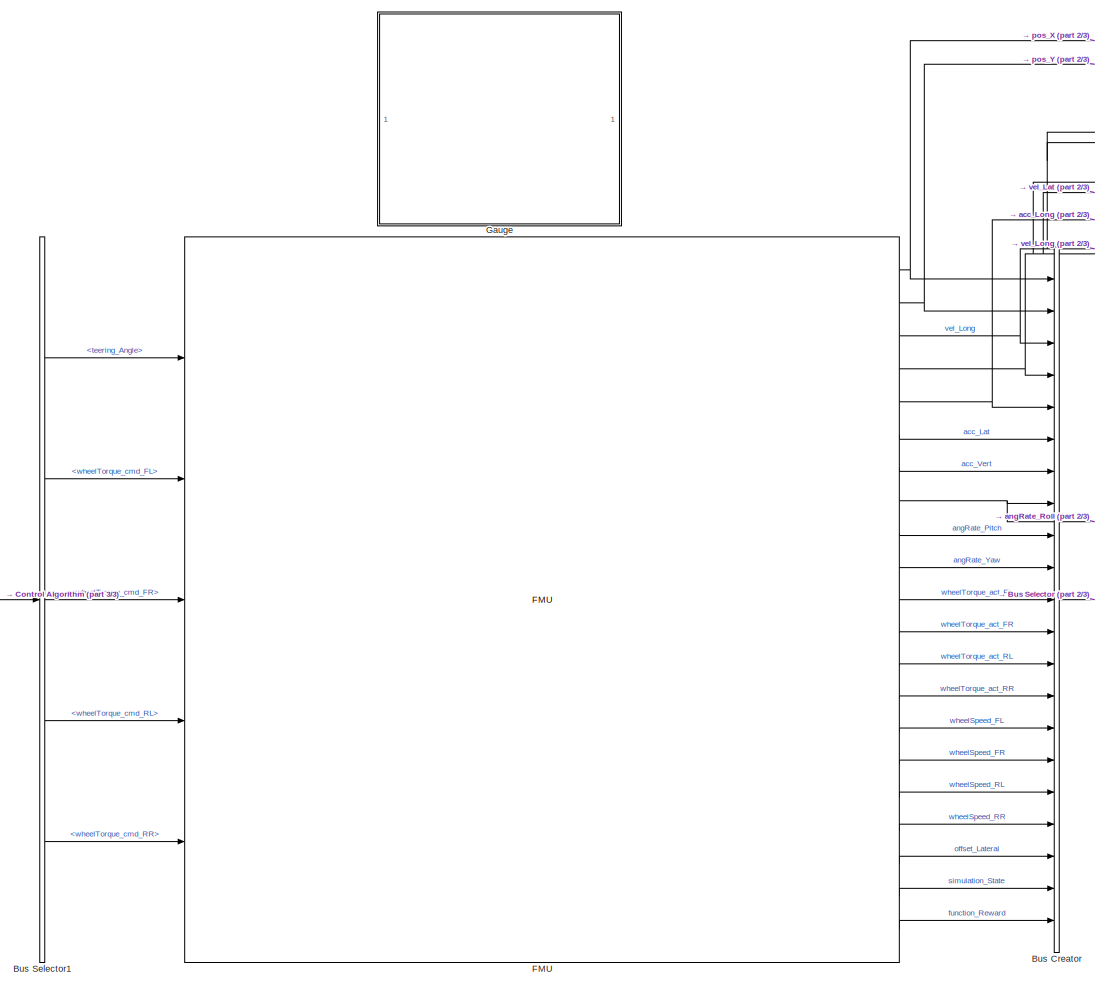
[diagram: root canvas - part 1/3, center side, full height]
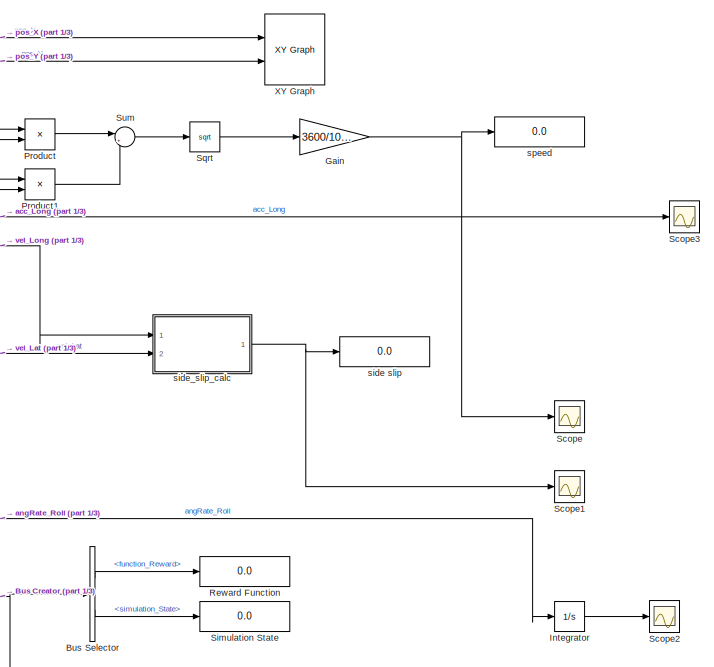
[diagram: root canvas - part 2/3, top right region]
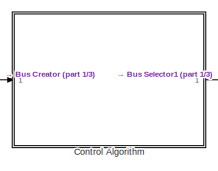
[diagram: root canvas - part 3/3, middle left region]
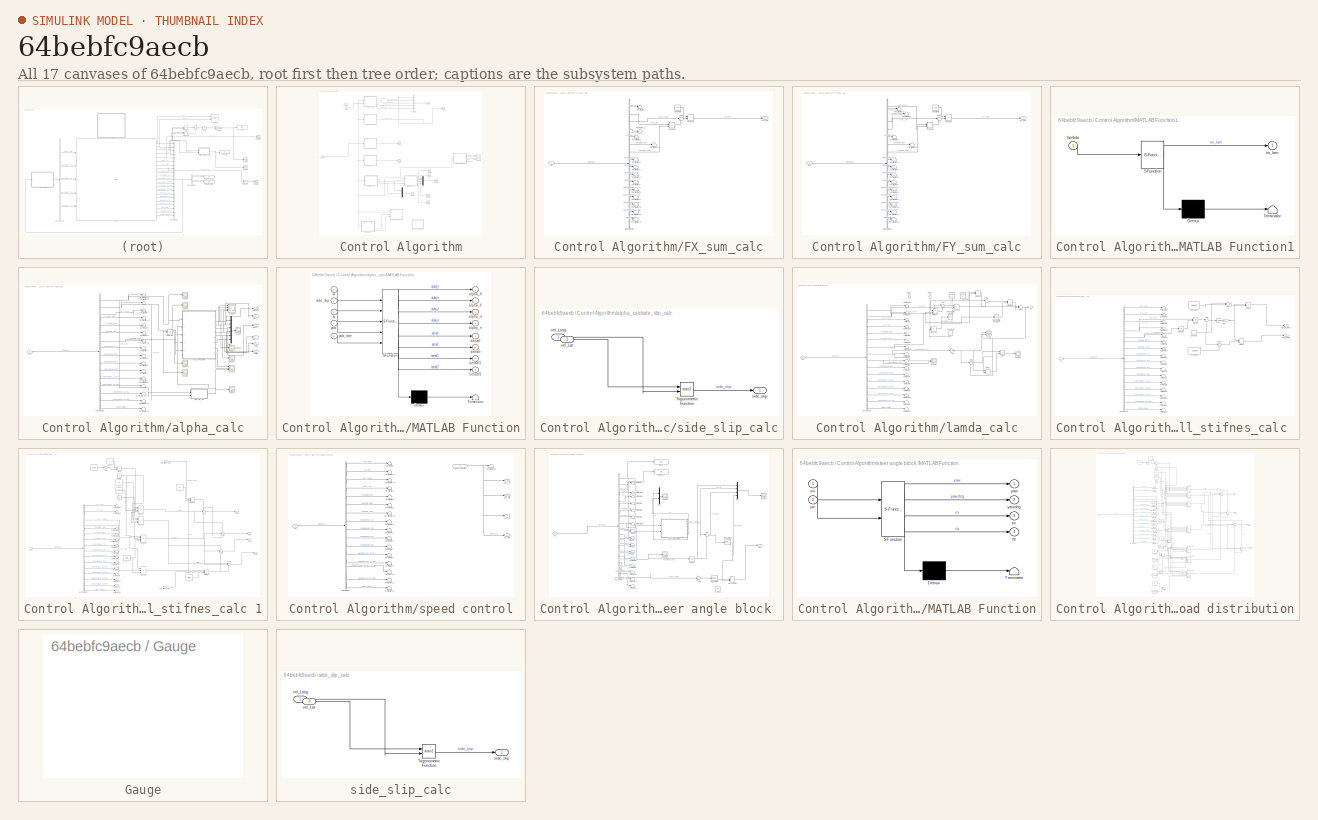
[diagram: thumbnail index - all 17 canvases of the model, root first then tree order]
MODEL slx_64bebfc9aecb
KIND model
CONFIG AbsTol = auto
CONFIG EnableMultiTasking = off
CONFIG FixedStep = 0.01
CONFIG MaxStep = auto
CONFIG MinStep = auto
CONFIG RelTol = 1e-3
CONFIG SampleTimeConstraint = Unconstrained
CONFIG Solver = VariableStepAuto
CONFIG SolverName = VariableStepAuto
CONFIG StartTime = 0.0
CONFIG StopTime = 25
BLOCK [BusCreator] Bus Creator
  DisplayOption = bar
  InheritFromInputs = on
  Inputs = 21
  Ports = [21, 1]
BLOCK [BusSelector] Bus Selector
  OutputAsBus = off
  OutputSignals = function_Reward,simulation_State
  Ports = [1, 2]
BLOCK [BusSelector] Bus Selector1
  OutputAsBus = off
  OutputSignals = teering_Angle,wheelTorque_cmd_FL,wheelTorque_cmd_FR,wheelTorque_cmd_RL,wheelTorque_cmd_RR
  Ports = [1, 5]
BLOCK [SubSystem] Control Algorithm
  Ports = [1, 1]
  RequestExecContextInheritance = off
  Variant = off
BLOCK [Outport] Control Algorithm/Actuation
  IconDisplay = Port number
BLOCK [BusCreator] Control Algorithm/Bus Creator
  DisplayOption = bar
  InheritFromInputs = on
  Inputs = 5
  Ports = [5, 1]
BLOCK [Constant] Control Algorithm/Constant
  Value = 12.5
BLOCK [SubSystem] Control Algorithm/FX_sum_calc
  Ports = [1, 1]
  RequestExecContextInheritance = off
  Variant = off
BLOCK [BusSelector] Control Algorithm/FX_sum_calc/Bus Selector
  OutputAsBus = off
  OutputSignals = vel_Long,vel_Lat,acc_Long,acc_Lat,angRate_Roll,angRate_Pitch,angRate_Yaw,wheelSpeed_FL,wheelSpeed_FR,wheelSpeed_RL,wheelSpeed_RR,wheelTorque_act_FL,wheelTorque_act_FR,wheelTorque_act_RL,wheelTorque_act_RR,offset_Lateral  <repeated x8 — deduplicated; at blocks: Bus Selector>
  Ports = [1, 16]
BLOCK [Constant] Control Algorithm/FX_sum_calc/Constant5
  Value = 1300
BLOCK [Outport] Control Algorithm/FX_sum_calc/FX_sum
  IconDisplay = Port number
BLOCK [Inport] Control Algorithm/FX_sum_calc/In1
  IconDisplay = Port number and signal name
BLOCK [Product] Control Algorithm/FX_sum_calc/Product
  InputSameDT = off
  OutDataTypeStr = Inherit: Inherit via internal rule
  Ports = [2, 1]
  RndMeth = Floor
  SaturateOnIntegerOverflow = off
BLOCK [Product] Control Algorithm/FX_sum_calc/Product1
  InputSameDT = off
  OutDataTypeStr = Inherit: Inherit via internal rule
  Ports = [2, 1]
  RndMeth = Floor
  SaturateOnIntegerOverflow = off
BLOCK [Sum] Control Algorithm/FX_sum_calc/Sum
  IconShape = round
  InputSameDT = off
  Inputs = |+-
  OutDataTypeStr = Inherit: Inherit via internal rule
  Ports = [2, 1]
  SaturateOnIntegerOverflow = off
BLOCK [Terminator] Control Algorithm/FX_sum_calc/Terminator
BLOCK [Terminator] Control Algorithm/FX_sum_calc/Terminator1
BLOCK [Terminator] Control Algorithm/FX_sum_calc/Terminator10
BLOCK [Terminator] Control Algorithm/FX_sum_calc/Terminator11
BLOCK [Terminator] Control Algorithm/FX_sum_calc/Terminator12
BLOCK [Terminator] Control Algorithm/FX_sum_calc/Terminator2
BLOCK [Terminator] Control Algorithm/FX_sum_calc/Terminator3
BLOCK [Terminator] Control Algorithm/FX_sum_calc/Terminator4
BLOCK [Terminator] Control Algorithm/FX_sum_calc/Terminator5
BLOCK [Terminator] Control Algorithm/FX_sum_calc/Terminator6
BLOCK [Terminator] Control Algorithm/FX_sum_calc/Terminator7
BLOCK [Terminator] Control Algorithm/FX_sum_calc/Terminator8
BLOCK [Terminator] Control Algorithm/FX_sum_calc/Terminator9
BLOCK [SubSystem] Control Algorithm/FY_sum_calc
  Ports = [1, 1]
  RequestExecContextInheritance = off
  Variant = off
BLOCK [BusSelector] Control Algorithm/FY_sum_calc/Bus Selector
  OutputAsBus = off
  Ports = [1, 16]
BLOCK [Constant] Control Algorithm/FY_sum_calc/Constant5
  Value = 1300
BLOCK [Outport] Control Algorithm/FY_sum_calc/FY_sum
  IconDisplay = Port number
BLOCK [Inport] Control Algorithm/FY_sum_calc/In1
  IconDisplay = Signal name
BLOCK [Product] Control Algorithm/FY_sum_calc/Product
  InputSameDT = off
  OutDataTypeStr = Inherit: Inherit via internal rule
  Ports = [2, 1]
  RndMeth = Floor
  SaturateOnIntegerOverflow = off
BLOCK [Product] Control Algorithm/FY_sum_calc/Product1
  InputSameDT = off
  OutDataTypeStr = Inherit: Inherit via internal rule
  Ports = [2, 1]
  RndMeth = Floor
  SaturateOnIntegerOverflow = off
BLOCK [Sum] Control Algorithm/FY_sum_calc/Sum
  IconShape = round
  InputSameDT = off
  Inputs = |++
  OutDataTypeStr = Inherit: Inherit via internal rule
  Ports = [2, 1]
  SaturateOnIntegerOverflow = off
BLOCK [Terminator] Control Algorithm/FY_sum_calc/Terminator1
BLOCK [Terminator] Control Algorithm/FY_sum_calc/Terminator10
BLOCK [Terminator] Control Algorithm/FY_sum_calc/Terminator11
BLOCK [Terminator] Control Algorithm/FY_sum_calc/Terminator12
BLOCK [Terminator] Control Algorithm/FY_sum_calc/Terminator13
BLOCK [Terminator] Control Algorithm/FY_sum_calc/Terminator2
BLOCK [Terminator] Control Algorithm/FY_sum_calc/Terminator3
BLOCK [Terminator] Control Algorithm/FY_sum_calc/Terminator4
BLOCK [Terminator] Control Algorithm/FY_sum_calc/Terminator5
BLOCK [Terminator] Control Algorithm/FY_sum_calc/Terminator6
BLOCK [Terminator] Control Algorithm/FY_sum_calc/Terminator7
BLOCK [Terminator] Control Algorithm/FY_sum_calc/Terminator8
BLOCK [Terminator] Control Algorithm/FY_sum_calc/Terminator9
BLOCK [Inport] Control Algorithm/Feedback
  IconDisplay = Port number
BLOCK [SubSystem] Control Algorithm/MATLAB Function1
  ErrorFcn = Stateflow.Translate.translate
  PermitHierarchicalResolution = ExplicitOnly
  Ports = [1, 1]
  RequestExecContextInheritance = off
  SFBlockType = MATLAB Function
  TreatAsAtomicUnit = on
  Variant = off
BLOCK [Demux] Control Algorithm/MATLAB Function1/ Demux 
  Outputs = 1
  Ports = [1, 1]
BLOCK [S-Function] Control Algorithm/MATLAB Function1/ SFunction 
  EnableBusSupport = on
  FunctionName = sf_sfun
  PortCounts = [1 2]
  Ports = [1, 2]
  SFcnIsStateOwnerBlock = off
  SFunctionDeploymentMode = off
  Tag = Stateflow S-Function solution 1
BLOCK [Terminator] Control Algorithm/MATLAB Function1/ Terminator 
BLOCK [Inport] Control Algorithm/MATLAB Function1/lambda
  IconDisplay = Port number
BLOCK [Outport] Control Algorithm/MATLAB Function1/mi_lam
  IconDisplay = Port number
BLOCK [Mux] Control Algorithm/Mux
  DisplayOption = bar
  Ports = [4, 1]
BLOCK [Mux] Control Algorithm/Mux1
  DisplayOption = bar
  Inputs = 2
  Ports = [2, 1]
BLOCK [Scope] Control Algorithm/Scope
  NumInputPorts = 1
  Ports = [1]
  ScopeSpecificationString = Simulink.scopes.TimeScopeBlockCfg('CurrentConfiguration', extmgr.ConfigurationSet(extmgr.Configuration('Core','General UI',true),extmgr.Configuration('Core','Source UI',true),extmgr.Configuration('Sources','WiredSimulink',true),extmgr.Configuration('Visuals','Time Domain',true,'SerializedDisplays',{struct('MinYLimReal','-3736.70903','MaxYLimReal','1861.60857','YLabelReal','','MinYLimMag','  0.0000...<+1382ch>
BLOCK [Scope] Control Algorithm/Scope1
  NumInputPorts = 1
  Ports = [1]
  ScopeSpecificationString = Simulink.scopes.TimeScopeBlockCfg('CurrentConfiguration', extmgr.ConfigurationSet(extmgr.Configuration('Core','General UI',true),extmgr.Configuration('Core','Source UI',true),extmgr.Configuration('Sources','WiredSimulink',true,'DataLoggingVariableName','ScopeData1'),extmgr.Configuration('Visuals','Time Domain',true,'SerializedDisplays',{struct('MinYLimReal','-31934.51338','MaxYLimReal','29941.2167...<+1474ch>
BLOCK [Scope] Control Algorithm/Scope2
  NumInputPorts = 1
  Ports = [1]
  ScopeSpecificationString = Simulink.scopes.TimeScopeBlockCfg('CurrentConfiguration', extmgr.ConfigurationSet(extmgr.Configuration('Core','General UI',true),extmgr.Configuration('Core','Source UI',true),extmgr.Configuration('Sources','WiredSimulink',true,'DataLoggingVariableName','ScopeData4'),extmgr.Configuration('Visuals','Time Domain',true,'SerializedDisplays',{struct('MinYLimReal','-0.56487','MaxYLimReal','5.08382','YLab...<+1425ch>
BLOCK [Scope] Control Algorithm/Scope3
  NumInputPorts = 1
  Ports = [1]
  ScopeSpecificationString = Simulink.scopes.TimeScopeBlockCfg('CurrentConfiguration', extmgr.ConfigurationSet(extmgr.Configuration('Core','General UI',true),extmgr.Configuration('Core','Source UI',true),extmgr.Configuration('Sources','WiredSimulink',true,'DataLoggingVariableName','ScopeData5'),extmgr.Configuration('Visuals','Time Domain',true,'SerializedDisplays',{struct('MinYLimReal','-81057023.23958','MaxYLimReal','5757985...<+1551ch>
BLOCK [Scope] Control Algorithm/Scope4
  NumInputPorts = 1
  Ports = [1]
  ScopeSpecificationString = Simulink.scopes.TimeScopeBlockCfg('CurrentConfiguration', extmgr.ConfigurationSet(extmgr.Configuration('Core','General UI',true),extmgr.Configuration('Core','Source UI',true),extmgr.Configuration('Sources','WiredSimulink',true,'DataLoggingVariableName','ScopeData6'),extmgr.Configuration('Visuals','Time Domain',true,'SerializedDisplays',{struct('MinYLimReal','-6687000496.41714','MaxYLimReal','69885...<+1522ch>
BLOCK [Scope] Control Algorithm/Scope5
  NumInputPorts = 1
  Ports = [1]
  ScopeSpecificationString = Simulink.scopes.TimeScopeBlockCfg('CurrentConfiguration', extmgr.ConfigurationSet(extmgr.Configuration('Core','General UI',true),extmgr.Configuration('Core','Source UI',true),extmgr.Configuration('Sources','WiredSimulink',true,'DataLoggingVariableName','ScopeData7'),extmgr.Configuration('Visuals','Time Domain',true,'SerializedDisplays',{struct('MinYLimReal','-153750814.21969','MaxYLimReal','178977...<+1488ch>
BLOCK [Scope] Control Algorithm/Scope6
  NumInputPorts = 1
  Ports = [1]
  ScopeSpecificationString = Simulink.scopes.TimeScopeBlockCfg('CurrentConfiguration', extmgr.ConfigurationSet(extmgr.Configuration('Core','General UI',true),extmgr.Configuration('Core','Source UI',true),extmgr.Configuration('Sources','WiredSimulink',true,'DataLoggingVariableName','ScopeData8'),extmgr.Configuration('Visuals','Time Domain',true,'SerializedDisplays',{struct('MinYLimReal','-6687000167.53782','MaxYLimReal','69885...<+1497ch>
BLOCK [Scope] Control Algorithm/Scope7
  NumInputPorts = 1
  Ports = [1]
  ScopeSpecificationString = Simulink.scopes.TimeScopeBlockCfg('CurrentConfiguration', extmgr.ConfigurationSet(extmgr.Configuration('Core','General UI',true),extmgr.Configuration('Core','Source UI',true),extmgr.Configuration('Sources','WiredSimulink',true,'DataLoggingVariableName','ScopeData9'),extmgr.Configuration('Visuals','Time Domain',true,'SerializedDisplays',{struct('MinYLimReal','-153750814.21969','MaxYLimReal','178977...<+1560ch>
BLOCK [Scope] Control Algorithm/Scope8
  NumInputPorts = 1
  Ports = [1]
  ScopeSpecificationString = Simulink.scopes.TimeScopeBlockCfg('CurrentConfiguration', extmgr.ConfigurationSet(extmgr.Configuration('Core','General UI',true),extmgr.Configuration('Core','Source UI',true),extmgr.Configuration('Sources','WiredSimulink',true,'DataLoggingVariableName','ScopeData10'),extmgr.Configuration('Visuals','Time Domain',true,'SerializedDisplays',{struct('MinYLimReal','-153750814.21969','MaxYLimReal','17897...<+1511ch>
BLOCK [Scope] Control Algorithm/Scope9
  NumInputPorts = 4
  Ports = [4]
  ScopeSpecificationString = Simulink.scopes.TimeScopeBlockCfg('CurrentConfiguration', extmgr.ConfigurationSet(extmgr.Configuration('Core','General UI',true),extmgr.Configuration('Core','Source UI',true),extmgr.Configuration('Sources','WiredSimulink',true,'DataLoggingVariableName','ScopeData16'),extmgr.Configuration('Visuals','Time Domain',true,'SerializedDisplays',{struct('MinYLimReal','2996.53454','MaxYLimReal','3339.26901'...<+1601ch>
BLOCK [Step] Control Algorithm/Step
  After = 1200
  Before = 12.5
  SampleTime = 0
  Time = 5
BLOCK [SubSystem] Control Algorithm/alpha_calc
  Ports = [1, 6]
  RequestExecContextInheritance = off
  Variant = off
BLOCK [BusSelector] Control Algorithm/alpha_calc/Bus Selector
  OutputAsBus = off
  Ports = [1, 16]
BLOCK [Inport] Control Algorithm/alpha_calc/In1
  IconDisplay = Port number and signal name
BLOCK [Integrator] Control Algorithm/alpha_calc/Integrator
  Ports = [1, 1]
BLOCK [SubSystem] Control Algorithm/alpha_calc/MATLAB Function
  ErrorFcn = Stateflow.Translate.translate
  PermitHierarchicalResolution = ExplicitOnly
  Ports = [5, 8]
  RequestExecContextInheritance = off
  SFBlockType = MATLAB Function
  TreatAsAtomicUnit = on
  Variant = off
BLOCK [Demux] Control Algorithm/alpha_calc/MATLAB Function/ Demux 
  Outputs = 1
  Ports = [1, 1]
BLOCK [S-Function] Control Algorithm/alpha_calc/MATLAB Function/ SFunction 
  EnableBusSupport = on
  FunctionName = sf_sfun
  PortCounts = [5 9]
  Ports = [5, 9]
  SFcnIsStateOwnerBlock = off
  SFunctionDeploymentMode = off
  Tag = Stateflow S-Function solution 3
BLOCK [Terminator] Control Algorithm/alpha_calc/MATLAB Function/ Terminator 
BLOCK [Outport] Control Algorithm/alpha_calc/MATLAB Function/alpha_fl
  IconDisplay = Port number
BLOCK [Outport] Control Algorithm/alpha_calc/MATLAB Function/alpha_fr
  IconDisplay = Port number
  Port = 2
BLOCK [Outport] Control Algorithm/alpha_calc/MATLAB Function/alpha_rl
  IconDisplay = Port number
  Port = 3
BLOCK [Outport] Control Algorithm/alpha_calc/MATLAB Function/alpha_rr
  IconDisplay = Port number
  Port = 4
BLOCK [Outport] Control Algorithm/alpha_calc/MATLAB Function/betadf1
  IconDisplay = Port number
  Port = 7
BLOCK [Outport] Control Algorithm/alpha_calc/MATLAB Function/betadf2
  IconDisplay = Port number
  Port = 8
BLOCK [Outport] Control Algorithm/alpha_calc/MATLAB Function/deltafl
  IconDisplay = Port number
  Port = 5
BLOCK [Outport] Control Algorithm/alpha_calc/MATLAB Function/deltafr
  IconDisplay = Port number
  Port = 6
BLOCK [Inport] Control Algorithm/alpha_calc/MATLAB Function/side_slip
  IconDisplay = Port number
  Port = 2
BLOCK [Inport] Control Algorithm/alpha_calc/MATLAB Function/vx
  IconDisplay = Port number
BLOCK [Inport] Control Algorithm/alpha_calc/MATLAB Function/vy
  IconDisplay = Port number
  Port = 3
BLOCK [Inport] Control Algorithm/alpha_calc/MATLAB Function/yaw
  IconDisplay = Port number
  Port = 4
BLOCK [Inport] Control Algorithm/alpha_calc/MATLAB Function/yaw_rate
  IconDisplay = Port number
  Port = 5
BLOCK [Mux] Control Algorithm/alpha_calc/Mux
  DisplayOption = bar
  Inputs = 6
  Ports = [6, 1]
BLOCK [Scope] Control Algorithm/alpha_calc/Scope
  NumInputPorts = 1
  Ports = [1]
  ScopeSpecificationString = Simulink.scopes.TimeScopeBlockCfg('CurrentConfiguration', extmgr.ConfigurationSet(extmgr.Configuration('Core','General UI',true),extmgr.Configuration('Core','Source UI',true),extmgr.Configuration('Sources','WiredSimulink',true,'DataLoggingVariableName','ScopeData1'),extmgr.Configuration('Visuals','Time Domain',true,'SerializedDisplays',{struct('MinYLimReal','-0.28358','MaxYLimReal','0.90857','YLab...<+1614ch>
BLOCK [Scope] Control Algorithm/alpha_calc/Scope1
  NumInputPorts = 1
  Ports = [1]
  ScopeSpecificationString = Simulink.scopes.TimeScopeBlockCfg('CurrentConfiguration', extmgr.ConfigurationSet(extmgr.Configuration('Core','General UI',true),extmgr.Configuration('Core','Source UI',true),extmgr.Configuration('Sources','WiredSimulink',true,'DataLoggingVariableName','ScopeData2'),extmgr.Configuration('Visuals','Time Domain',true,'SerializedDisplays',{struct('MinYLimReal','-0.07769','MaxYLimReal','0.69916','YLab...<+1419ch>
BLOCK [Scope] Control Algorithm/alpha_calc/Scope11
  NumInputPorts = 4
  Ports = [4]
  ScopeSpecificationString = Simulink.scopes.TimeScopeBlockCfg('CurrentConfiguration', extmgr.ConfigurationSet(extmgr.Configuration('Core','General UI',true),extmgr.Configuration('Core','Source UI',true),extmgr.Configuration('Sources','WiredSimulink',true,'DataLoggingVariableName','ScopeData4'),extmgr.Configuration('Visuals','Time Domain',true,'SerializedDisplays',{struct('MinYLimReal','-0.96339','MaxYLimReal','0.4521','YLabe...<+1533ch>
BLOCK [Scope] Control Algorithm/alpha_calc/Scope2
  NumInputPorts = 1
  Ports = [1]
  ScopeSpecificationString = Simulink.scopes.TimeScopeBlockCfg('CurrentConfiguration', extmgr.ConfigurationSet(extmgr.Configuration('Core','General UI',true),extmgr.Configuration('Core','Source UI',true),extmgr.Configuration('Sources','WiredSimulink',true,'DataLoggingVariableName','ScopeData4'),extmgr.Configuration('Visuals','Time Domain',true,'SerializedDisplays',{struct('MinYLimReal','-0.3927','MaxYLimReal','3.53429','YLabe...<+1424ch>
BLOCK [Scope] Control Algorithm/alpha_calc/Scope3
  NumInputPorts = 1
  Ports = [1]
  ScopeSpecificationString = Simulink.scopes.TimeScopeBlockCfg('CurrentConfiguration', extmgr.ConfigurationSet(extmgr.Configuration('Core','General UI',true),extmgr.Configuration('Core','Source UI',true),extmgr.Configuration('Sources','WiredSimulink',true,'DataLoggingVariableName','ScopeData5'),extmgr.Configuration('Visuals','Time Domain',true,'SerializedDisplays',{struct('MinYLimReal','16.42337','MaxYLimReal','19.03402','YLa...<+1420ch>
BLOCK [Scope] Control Algorithm/alpha_calc/Scope4
  NumInputPorts = 1
  Ports = [1]
  ScopeSpecificationString = Simulink.scopes.TimeScopeBlockCfg('CurrentConfiguration', extmgr.ConfigurationSet(extmgr.Configuration('Core','General UI',true),extmgr.Configuration('Core','Source UI',true),extmgr.Configuration('Sources','WiredSimulink',true,'DataLoggingVariableName','ScopeData6'),extmgr.Configuration('Visuals','Time Domain',true,'SerializedDisplays',{struct('MinYLimReal','-1.49684','MaxYLimReal','0.71419','YLab...<+1412ch>
BLOCK [Scope] Control Algorithm/alpha_calc/Scope5
  NumInputPorts = 1
  Ports = [1]
  ScopeSpecificationString = Simulink.scopes.TimeScopeBlockCfg('CurrentConfiguration', extmgr.ConfigurationSet(extmgr.Configuration('Core','General UI',true),extmgr.Configuration('Core','Source UI',true),extmgr.Configuration('Sources','WiredSimulink',true,'DataLoggingVariableName','ScopeData7'),extmgr.Configuration('Visuals','Time Domain',true,'SerializedDisplays',{struct('MinYLimReal','-0.00000015','MaxYLimReal','0.00000002'...<+1464ch>
BLOCK [Scope] Control Algorithm/alpha_calc/Scope6
  NumInputPorts = 1
  Ports = [1]
  ScopeSpecificationString = Simulink.scopes.TimeScopeBlockCfg('CurrentConfiguration', extmgr.ConfigurationSet(extmgr.Configuration('Core','General UI',true),extmgr.Configuration('Core','Source UI',true),extmgr.Configuration('Sources','WiredSimulink',true,'DataLoggingVariableName','ScopeData8'),extmgr.Configuration('Visuals','Time Domain',true,'SerializedDisplays',{struct('MinYLimReal','-0.00000012','MaxYLimReal','0.00000002'...<+1455ch>
BLOCK [Scope] Control Algorithm/alpha_calc/Scope8
  NumInputPorts = 3
  Ports = [3]
  ScopeSpecificationString = Simulink.scopes.TimeScopeBlockCfg('CurrentConfiguration', extmgr.ConfigurationSet(extmgr.Configuration('Core','General UI',true),extmgr.Configuration('Core','Source UI',true),extmgr.Configuration('Sources','WiredSimulink',true,'DataLoggingVariableName','ScopeData1'),extmgr.Configuration('Visuals','Time Domain',true,'SerializedDisplays',{struct('MinYLimReal','-0.08345','MaxYLimReal','0.0384','YLabe...<+1519ch>
BLOCK [Scope] Control Algorithm/alpha_calc/Scope9
  NumInputPorts = 1
  Ports = [1]
  ScopeSpecificationString = Simulink.scopes.TimeScopeBlockCfg('CurrentConfiguration', extmgr.ConfigurationSet(extmgr.Configuration('Core','General UI',true),extmgr.Configuration('Core','Source UI',true),extmgr.Configuration('Sources','WiredSimulink',true,'DataLoggingVariableName','ScopeData2'),extmgr.Configuration('Visuals','Time Domain',true,'SerializedDisplays',{struct('MinYLimReal','-0.08144','MaxYLimReal','0.03818','YLab...<+1475ch>
BLOCK [Terminator] Control Algorithm/alpha_calc/Terminator1
BLOCK [Terminator] Control Algorithm/alpha_calc/Terminator10
BLOCK [Terminator] Control Algorithm/alpha_calc/Terminator11
BLOCK [Terminator] Control Algorithm/alpha_calc/Terminator12
BLOCK [Terminator] Control Algorithm/alpha_calc/Terminator13
BLOCK [Terminator] Control Algorithm/alpha_calc/Terminator14
BLOCK [Terminator] Control Algorithm/alpha_calc/Terminator15
BLOCK [Terminator] Control Algorithm/alpha_calc/Terminator16
BLOCK [Terminator] Control Algorithm/alpha_calc/Terminator2
BLOCK [Terminator] Control Algorithm/alpha_calc/Terminator3
BLOCK [Terminator] Control Algorithm/alpha_calc/Terminator4
BLOCK [Terminator] Control Algorithm/alpha_calc/Terminator5
BLOCK [Terminator] Control Algorithm/alpha_calc/Terminator6
BLOCK [Terminator] Control Algorithm/alpha_calc/Terminator7
BLOCK [Terminator] Control Algorithm/alpha_calc/Terminator8
BLOCK [Terminator] Control Algorithm/alpha_calc/Terminator9
BLOCK [Outport] Control Algorithm/alpha_calc/alpha_fl
  IconDisplay = Port number
BLOCK [Outport] Control Algorithm/alpha_calc/alpha_fr
  IconDisplay = Port number
  Port = 2
BLOCK [Outport] Control Algorithm/alpha_calc/alpha_rl
  IconDisplay = Port number
  Port = 3
BLOCK [Outport] Control Algorithm/alpha_calc/alpha_rr
  IconDisplay = Port number
  Port = 4
BLOCK [Outport] Control Algorithm/alpha_calc/deltafl
  IconDisplay = Port number
  Port = 5
BLOCK [Outport] Control Algorithm/alpha_calc/deltafr
  IconDisplay = Port number
  Port = 6
BLOCK [SubSystem] Control Algorithm/alpha_calc/side_slip_calc
  Ports = [2, 1]
  RequestExecContextInheritance = off
  Variant = off
BLOCK [Trigonometry] Control Algorithm/alpha_calc/side_slip_calc/Trigonometric Function
  Operator = atan2
  Ports = [2, 1]
BLOCK [Outport] Control Algorithm/alpha_calc/side_slip_calc/side_slip
  IconDisplay = Port number
BLOCK [Inport] Control Algorithm/alpha_calc/side_slip_calc/vel_Lat
  IconDisplay = Port number
  Port = 2
BLOCK [Inport] Control Algorithm/alpha_calc/side_slip_calc/vel_Long
  IconDisplay = Port number
BLOCK [SubSystem] Control Algorithm/lamda_calc
  Ports = [3, 1]
  RequestExecContextInheritance = off
  Variant = off
BLOCK [BusSelector] Control Algorithm/lamda_calc/Bus Selector
  OutputAsBus = off
  Ports = [1, 16]
BLOCK [Constant] Control Algorithm/lamda_calc/Constant
  Value = 1.7/2
BLOCK [Constant] Control Algorithm/lamda_calc/Constant1
  Value = 1.4
BLOCK [Constant] Control Algorithm/lamda_calc/Constant2
  Value = -1
BLOCK [Product] Control Algorithm/lamda_calc/Divide
  InputSameDT = off
  Inputs = */
  OutDataTypeStr = Inherit: Inherit via internal rule
  Ports = [2, 1]
  RndMeth = Floor
  SaturateOnIntegerOverflow = off
BLOCK [Gain] Control Algorithm/lamda_calc/Gain
  Gain = 0.254
  OutDataTypeStr = Inherit: Inherit via internal rule
  ParamDataTypeStr = Inherit: Inherit via internal rule
  SaturateOnIntegerOverflow = off
BLOCK [Inport] Control Algorithm/lamda_calc/In1
  IconDisplay = Port number and signal name
BLOCK [MinMax] Control Algorithm/lamda_calc/MinMax
  Function = max
  InputSameDT = off
  Inputs = 2
  Ports = [2, 1]
  SaturateOnIntegerOverflow = off
BLOCK [Product] Control Algorithm/lamda_calc/Product
  InputSameDT = off
  OutDataTypeStr = Inherit: Inherit via internal rule
  Ports = [2, 1]
  RndMeth = Floor
  SaturateOnIntegerOverflow = off
BLOCK [Product] Control Algorithm/lamda_calc/Product1
  InputSameDT = off
  OutDataTypeStr = Inherit: Inherit via internal rule
  Ports = [2, 1]
  RndMeth = Floor
  SaturateOnIntegerOverflow = off
BLOCK [Product] Control Algorithm/lamda_calc/Product2
  InputSameDT = off
  OutDataTypeStr = Inherit: Inherit via internal rule
  Ports = [2, 1]
  RndMeth = Floor
  SaturateOnIntegerOverflow = off
BLOCK [Product] Control Algorithm/lamda_calc/Product3
  InputSameDT = off
  OutDataTypeStr = Inherit: Inherit via internal rule
  Ports = [2, 1]
  RndMeth = Floor
  SaturateOnIntegerOverflow = off
BLOCK [Product] Control Algorithm/lamda_calc/Product4
  InputSameDT = off
  OutDataTypeStr = Inherit: Inherit via internal rule
  Ports = [2, 1]
  RndMeth = Floor
  SaturateOnIntegerOverflow = off
BLOCK [Scope] Control Algorithm/lamda_calc/Scope
  NumInputPorts = 2
  Ports = [2]
  ScopeSpecificationString = Simulink.scopes.TimeScopeBlockCfg('CurrentConfiguration', extmgr.ConfigurationSet(extmgr.Configuration('Core','General UI',true),extmgr.Configuration('Core','Source UI',true),extmgr.Configuration('Sources','WiredSimulink',true,'DataLoggingVariableName','ScopeData2'),extmgr.Configuration('Visuals','Time Domain',true,'SerializedDisplays',{struct('MinYLimReal','11.86258','MaxYLimReal','17.58205','YLa...<+1472ch>
BLOCK [Scope] Control Algorithm/lamda_calc/Scope1
  NumInputPorts = 2
  Ports = [2]
  ScopeSpecificationString = Simulink.scopes.TimeScopeBlockCfg('CurrentConfiguration', extmgr.ConfigurationSet(extmgr.Configuration('Core','General UI',true),extmgr.Configuration('Core','Source UI',true),extmgr.Configuration('Sources','WiredSimulink',true,'DataLoggingVariableName','ScopeData1'),extmgr.Configuration('Visuals','Time Domain',true,'SerializedDisplays',{struct('MinYLimReal','48.31224','MaxYLimReal','54.73804','YLa...<+1493ch>
BLOCK [Scope] Control Algorithm/lamda_calc/Scope2
  NumInputPorts = 2
  Ports = [2]
  ScopeSpecificationString = Simulink.scopes.TimeScopeBlockCfg('CurrentConfiguration', extmgr.ConfigurationSet(extmgr.Configuration('Core','General UI',true),extmgr.Configuration('Core','Source UI',true),extmgr.Configuration('Sources','WiredSimulink',true,'DataLoggingVariableName','ScopeData2'),extmgr.Configuration('Visuals','Time Domain',true,'SerializedDisplays',{struct('MinYLimReal','-0.3701','MaxYLimReal','0.7793','YLabel...<+1441ch>
BLOCK [Sum] Control Algorithm/lamda_calc/Sum
  IconShape = round
  InputSameDT = off
  Inputs = |+-
  OutDataTypeStr = Inherit: Inherit via internal rule
  Ports = [2, 1]
  SaturateOnIntegerOverflow = off
BLOCK [Sum] Control Algorithm/lamda_calc/Sum1
  IconShape = round
  InputSameDT = off
  Inputs = |++
  OutDataTypeStr = Inherit: Inherit via internal rule
  Ports = [2, 1]
  SaturateOnIntegerOverflow = off
BLOCK [Sum] Control Algorithm/lamda_calc/Sum2
  IconShape = round
  InputSameDT = off
  Inputs = |++
  OutDataTypeStr = Inherit: Inherit via internal rule
  Ports = [2, 1]
  SaturateOnIntegerOverflow = off
BLOCK [Sum] Control Algorithm/lamda_calc/Sum3
  IconShape = round
  InputSameDT = off
  Inputs = |+-
  OutDataTypeStr = Inherit: Inherit via internal rule
  Ports = [2, 1]
  SaturateOnIntegerOverflow = off
BLOCK [Terminator] Control Algorithm/lamda_calc/Terminator1
BLOCK [Terminator] Control Algorithm/lamda_calc/Terminator10
BLOCK [Terminator] Control Algorithm/lamda_calc/Terminator11
BLOCK [Terminator] Control Algorithm/lamda_calc/Terminator12
BLOCK [Terminator] Control Algorithm/lamda_calc/Terminator13
BLOCK [Terminator] Control Algorithm/lamda_calc/Terminator14
BLOCK [Terminator] Control Algorithm/lamda_calc/Terminator15
BLOCK [Terminator] Control Algorithm/lamda_calc/Terminator16
BLOCK [Terminator] Control Algorithm/lamda_calc/Terminator2
BLOCK [Terminator] Control Algorithm/lamda_calc/Terminator3
BLOCK [Terminator] Control Algorithm/lamda_calc/Terminator4
BLOCK [Terminator] Control Algorithm/lamda_calc/Terminator5
BLOCK [Terminator] Control Algorithm/lamda_calc/Terminator6
BLOCK [Terminator] Control Algorithm/lamda_calc/Terminator7
BLOCK [Terminator] Control Algorithm/lamda_calc/Terminator8
BLOCK [Terminator] Control Algorithm/lamda_calc/Terminator9
BLOCK [Trigonometry] Control Algorithm/lamda_calc/Trigonometric Function
  Operator = cos
  Ports = [1, 1]
BLOCK [Trigonometry] Control Algorithm/lamda_calc/Trigonometric Function1
  Ports = [1, 1]
BLOCK [Inport] Control Algorithm/lamda_calc/delta_fl
  IconDisplay = Port number
  Port = 2
BLOCK [Inport] Control Algorithm/lamda_calc/delta_fr
  IconDisplay = Port number
  Port = 3
BLOCK [Outport] Control Algorithm/lamda_calc/vfl
  IconDisplay = Port number
BLOCK [SubSystem] Control Algorithm/roll_stifnes_calc 
  Ports = [1, 2]
  RequestExecContextInheritance = off
  Variant = off
BLOCK [BusSelector] Control Algorithm/roll_stifnes_calc /Bus Selector
  OutputAsBus = off
  Ports = [1, 16]
BLOCK [Constant] Control Algorithm/roll_stifnes_calc /Constant
BLOCK [Constant] Control Algorithm/roll_stifnes_calc /Constant1
  Value = 1.7/1.684
BLOCK [Constant] Control Algorithm/roll_stifnes_calc /Constant2
  Value = 1.684/1.7
BLOCK [Product] Control Algorithm/roll_stifnes_calc /Divide
  InputSameDT = off
  Inputs = */
  OutDataTypeStr = Inherit: Inherit via internal rule
  Ports = [2, 1]
  RndMeth = Floor
  SaturateOnIntegerOverflow = off
BLOCK [Product] Control Algorithm/roll_stifnes_calc /Divide1
  InputSameDT = off
  Inputs = */
  OutDataTypeStr = Inherit: Inherit via internal rule
  Ports = [2, 1]
  RndMeth = Floor
  SaturateOnIntegerOverflow = off
BLOCK [Product] Control Algorithm/roll_stifnes_calc /Divide2
  InputSameDT = off
  Inputs = */
  OutDataTypeStr = Inherit: Inherit via internal rule
  Ports = [2, 1]
  RndMeth = Floor
  SaturateOnIntegerOverflow = off
BLOCK [Gain] Control Algorithm/roll_stifnes_calc /Gain
  Gain = 0.35*1300
  OutDataTypeStr = Inherit: Inherit via internal rule
  ParamDataTypeStr = Inherit: Inherit via internal rule
  SaturateOnIntegerOverflow = off
BLOCK [Inport] Control Algorithm/roll_stifnes_calc /In1
  IconDisplay = Port number and signal name
BLOCK [Integrator] Control Algorithm/roll_stifnes_calc /Integrator
  Ports = [1, 1]
BLOCK [Sum] Control Algorithm/roll_stifnes_calc /Sum
  IconShape = round
  InputSameDT = off
  Inputs = |++
  OutDataTypeStr = Inherit: Inherit via internal rule
  Ports = [2, 1]
  SaturateOnIntegerOverflow = off
BLOCK [Sum] Control Algorithm/roll_stifnes_calc /Sum1
  IconShape = round
  InputSameDT = off
  Inputs = |++
  OutDataTypeStr = Inherit: Inherit via internal rule
  Ports = [2, 1]
  SaturateOnIntegerOverflow = off
BLOCK [Sum] Control Algorithm/roll_stifnes_calc /Sum2
  IconShape = round
  InputSameDT = off
  Inputs = |++
  OutDataTypeStr = Inherit: Inherit via internal rule
  Ports = [2, 1]
  SaturateOnIntegerOverflow = off
BLOCK [Terminator] Control Algorithm/roll_stifnes_calc /Terminator1
BLOCK [Terminator] Control Algorithm/roll_stifnes_calc /Terminator10
BLOCK [Terminator] Control Algorithm/roll_stifnes_calc /Terminator11
BLOCK [Terminator] Control Algorithm/roll_stifnes_calc /Terminator12
BLOCK [Terminator] Control Algorithm/roll_stifnes_calc /Terminator13
BLOCK [Terminator] Control Algorithm/roll_stifnes_calc /Terminator14
BLOCK [Terminator] Control Algorithm/roll_stifnes_calc /Terminator15
BLOCK [Terminator] Control Algorithm/roll_stifnes_calc /Terminator16
BLOCK [Terminator] Control Algorithm/roll_stifnes_calc /Terminator2
BLOCK [Terminator] Control Algorithm/roll_stifnes_calc /Terminator3
BLOCK [Terminator] Control Algorithm/roll_stifnes_calc /Terminator4
BLOCK [Terminator] Control Algorithm/roll_stifnes_calc /Terminator5
BLOCK [Terminator] Control Algorithm/roll_stifnes_calc /Terminator6
BLOCK [Terminator] Control Algorithm/roll_stifnes_calc /Terminator7
BLOCK [Terminator] Control Algorithm/roll_stifnes_calc /Terminator8
BLOCK [Terminator] Control Algorithm/roll_stifnes_calc /Terminator9
BLOCK [Outport] Control Algorithm/roll_stifnes_calc /front_roll_stifnes
  IconDisplay = Port number
BLOCK [Outport] Control Algorithm/roll_stifnes_calc /rear_roll_stifnes
  IconDisplay = Port number
  Port = 2
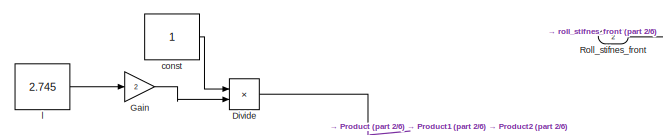
[diagram: Control Algorithm/roll_stifnes_calc 1 - part 1/6, top center region]
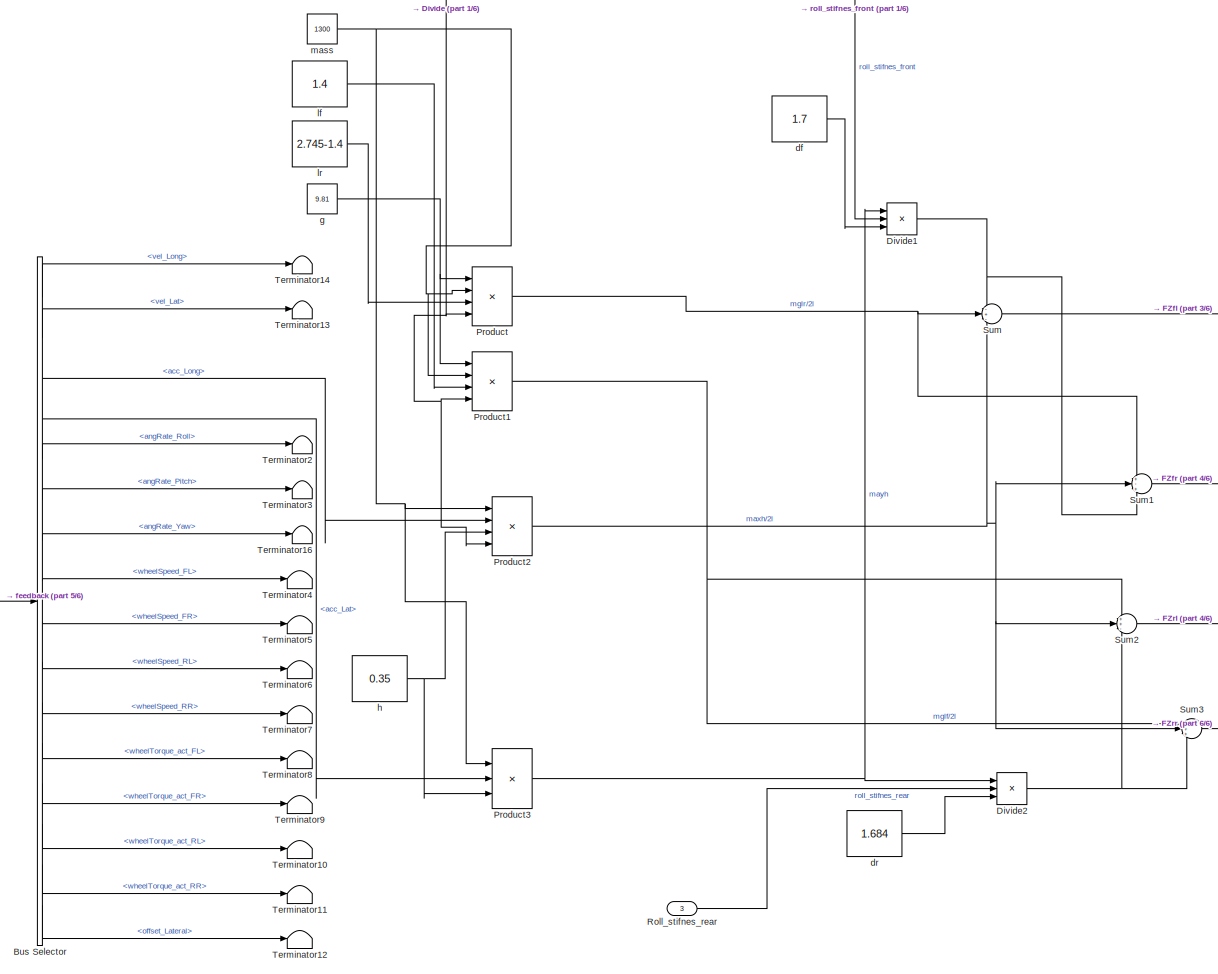
[diagram: Control Algorithm/roll_stifnes_calc 1 - part 2/6, center side, full height]
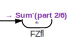
[diagram: Control Algorithm/roll_stifnes_calc 1 - part 3/6, middle right region]
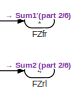
[diagram: Control Algorithm/roll_stifnes_calc 1 - part 4/6, middle right region]
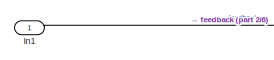
[diagram: Control Algorithm/roll_stifnes_calc 1 - part 5/6, middle left region]
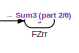
[diagram: Control Algorithm/roll_stifnes_calc 1 - part 6/6, bottom right region]
BLOCK [SubSystem] Control Algorithm/roll_stifnes_calc 1
  Ports = [3, 4]
  RequestExecContextInheritance = off
  Variant = off
BLOCK [BusSelector] Control Algorithm/roll_stifnes_calc 1/Bus Selector
  OutputAsBus = off
  Ports = [1, 16]
BLOCK [Product] Control Algorithm/roll_stifnes_calc 1/Divide
  InputSameDT = off
  Inputs = */
  OutDataTypeStr = Inherit: Inherit via internal rule
  Ports = [2, 1]
  RndMeth = Floor
  SaturateOnIntegerOverflow = off
BLOCK [Product] Control Algorithm/roll_stifnes_calc 1/Divide1
  InputSameDT = off
  Inputs = **/
  OutDataTypeStr = Inherit: Inherit via internal rule
  Ports = [3, 1]
  RndMeth = Floor
  SaturateOnIntegerOverflow = off
BLOCK [Product] Control Algorithm/roll_stifnes_calc 1/Divide2
  InputSameDT = off
  Inputs = **/
  OutDataTypeStr = Inherit: Inherit via internal rule
  Ports = [3, 1]
  RndMeth = Floor
  SaturateOnIntegerOverflow = off
BLOCK [Outport] Control Algorithm/roll_stifnes_calc 1/FZfl
  IconDisplay = Port number
  Port = 2
BLOCK [Outport] Control Algorithm/roll_stifnes_calc 1/FZfr
  IconDisplay = Port number
BLOCK [Outport] Control Algorithm/roll_stifnes_calc 1/FZrl
  IconDisplay = Port number
  Port = 4
BLOCK [Outport] Control Algorithm/roll_stifnes_calc 1/FZrr
  IconDisplay = Port number
  Port = 3
BLOCK [Gain] Control Algorithm/roll_stifnes_calc 1/Gain
  Gain = 2
  OutDataTypeStr = Inherit: Inherit via internal rule
  ParamDataTypeStr = Inherit: Inherit via internal rule
  SaturateOnIntegerOverflow = off
BLOCK [Inport] Control Algorithm/roll_stifnes_calc 1/In1
  IconDisplay = Port number and signal name
BLOCK [Product] Control Algorithm/roll_stifnes_calc 1/Product
  InputSameDT = off
  Inputs = 4
  OutDataTypeStr = Inherit: Inherit via internal rule
  Ports = [4, 1]
  RndMeth = Floor
  SaturateOnIntegerOverflow = off
BLOCK [Product] Control Algorithm/roll_stifnes_calc 1/Product1
  InputSameDT = off
  Inputs = 4
  OutDataTypeStr = Inherit: Inherit via internal rule
  Ports = [4, 1]
  RndMeth = Floor
  SaturateOnIntegerOverflow = off
BLOCK [Product] Control Algorithm/roll_stifnes_calc 1/Product2
  InputSameDT = off
  Inputs = 4
  OutDataTypeStr = Inherit: Inherit via internal rule
  Ports = [4, 1]
  RndMeth = Floor
  SaturateOnIntegerOverflow = off
BLOCK [Product] Control Algorithm/roll_stifnes_calc 1/Product3
  InputSameDT = off
  Inputs = 3
  OutDataTypeStr = Inherit: Inherit via internal rule
  Ports = [3, 1]
  RndMeth = Floor
  SaturateOnIntegerOverflow = off
BLOCK [Inport] Control Algorithm/roll_stifnes_calc 1/Roll_stifnes_front
  IconDisplay = Port number
  Port = 2
BLOCK [Inport] Control Algorithm/roll_stifnes_calc 1/Roll_stifnes_rear 
  IconDisplay = Port number
  Port = 3
BLOCK [Sum] Control Algorithm/roll_stifnes_calc 1/Sum
  IconShape = round
  InputSameDT = off
  Inputs = -+-
  OutDataTypeStr = Inherit: Inherit via internal rule
  Ports = [3, 1]
  SaturateOnIntegerOverflow = off
BLOCK [Sum] Control Algorithm/roll_stifnes_calc 1/Sum1
  IconShape = round
  InputSameDT = off
  Inputs = +-+
  OutDataTypeStr = Inherit: Inherit via internal rule
  Ports = [3, 1]
  SaturateOnIntegerOverflow = off
BLOCK [Sum] Control Algorithm/roll_stifnes_calc 1/Sum2
  IconShape = round
  InputSameDT = off
  Inputs = ++-
  OutDataTypeStr = Inherit: Inherit via internal rule
  Ports = [3, 1]
  SaturateOnIntegerOverflow = off
BLOCK [Sum] Control Algorithm/roll_stifnes_calc 1/Sum3
  IconShape = round
  InputSameDT = off
  Inputs = +++
  OutDataTypeStr = Inherit: Inherit via internal rule
  Ports = [3, 1]
  SaturateOnIntegerOverflow = off
BLOCK [Terminator] Control Algorithm/roll_stifnes_calc 1/Terminator10
BLOCK [Terminator] Control Algorithm/roll_stifnes_calc 1/Terminator11
BLOCK [Terminator] Control Algorithm/roll_stifnes_calc 1/Terminator12
BLOCK [Terminator] Control Algorithm/roll_stifnes_calc 1/Terminator13
BLOCK [Terminator] Control Algorithm/roll_stifnes_calc 1/Terminator14
BLOCK [Terminator] Control Algorithm/roll_stifnes_calc 1/Terminator16
BLOCK [Terminator] Control Algorithm/roll_stifnes_calc 1/Terminator2
BLOCK [Terminator] Control Algorithm/roll_stifnes_calc 1/Terminator3
BLOCK [Terminator] Control Algorithm/roll_stifnes_calc 1/Terminator4
BLOCK [Terminator] Control Algorithm/roll_stifnes_calc 1/Terminator5
BLOCK [Terminator] Control Algorithm/roll_stifnes_calc 1/Terminator6
BLOCK [Terminator] Control Algorithm/roll_stifnes_calc 1/Terminator7
BLOCK [Terminator] Control Algorithm/roll_stifnes_calc 1/Terminator8
BLOCK [Terminator] Control Algorithm/roll_stifnes_calc 1/Terminator9
BLOCK [Constant] Control Algorithm/roll_stifnes_calc 1/const
BLOCK [Constant] Control Algorithm/roll_stifnes_calc 1/df
  Value = 1.7
BLOCK [Constant] Control Algorithm/roll_stifnes_calc 1/dr
  Value = 1.684
BLOCK [Constant] Control Algorithm/roll_stifnes_calc 1/g
  Value = 9.81
BLOCK [Constant] Control Algorithm/roll_stifnes_calc 1/h
  Value = 0.35
BLOCK [Constant] Control Algorithm/roll_stifnes_calc 1/l 
  Value = 2.745
BLOCK [Constant] Control Algorithm/roll_stifnes_calc 1/lf 
  Value = 1.4
BLOCK [Constant] Control Algorithm/roll_stifnes_calc 1/lr
  Value = 2.745-1.4
BLOCK [Constant] Control Algorithm/roll_stifnes_calc 1/mass
  Value = 1300
BLOCK [SubSystem] Control Algorithm/speed control
  Ports = [2, 4]
  RequestExecContextInheritance = off
  Variant = off
BLOCK [BusSelector] Control Algorithm/speed control/Bus Selector
  OutputAsBus = off
  Ports = [1, 16]
BLOCK [Inport] Control Algorithm/speed control/In1
  IconDisplay = Port number and signal name
BLOCK [Terminator] Control Algorithm/speed control/Terminator
BLOCK [Terminator] Control Algorithm/speed control/Terminator1
BLOCK [Terminator] Control Algorithm/speed control/Terminator10
BLOCK [Terminator] Control Algorithm/speed control/Terminator11
BLOCK [Terminator] Control Algorithm/speed control/Terminator12
BLOCK [Terminator] Control Algorithm/speed control/Terminator13
BLOCK [Terminator] Control Algorithm/speed control/Terminator14
BLOCK [Terminator] Control Algorithm/speed control/Terminator15
BLOCK [Terminator] Control Algorithm/speed control/Terminator16
BLOCK [Terminator] Control Algorithm/speed control/Terminator2
BLOCK [Terminator] Control Algorithm/speed control/Terminator3
BLOCK [Terminator] Control Algorithm/speed control/Terminator4
BLOCK [Terminator] Control Algorithm/speed control/Terminator5
BLOCK [Terminator] Control Algorithm/speed control/Terminator6
BLOCK [Terminator] Control Algorithm/speed control/Terminator7
BLOCK [Terminator] Control Algorithm/speed control/Terminator8
BLOCK [Terminator] Control Algorithm/speed control/Terminator9
BLOCK [Outport] Control Algorithm/speed control/WT_FL 
  IconDisplay = Port number
BLOCK [Outport] Control Algorithm/speed control/WT_FR
  IconDisplay = Port number
  Port = 2
BLOCK [Outport] Control Algorithm/speed control/WT_RL
  IconDisplay = Port number
  Port = 3
BLOCK [Outport] Control Algorithm/speed control/WT_RR
  IconDisplay = Port number
  Port = 4
BLOCK [Inport] Control Algorithm/speed control/speed_ref(km//h) 
  IconDisplay = Port number
  Port = 2
BLOCK [SubSystem] Control Algorithm/steer angle block 
  Ports = [1, 1]
  RequestExecContextInheritance = off
  Variant = off
BLOCK [BusSelector] Control Algorithm/steer angle block /Bus Selector
  OutputAsBus = off
  OutputSignals = pos_X,pos_Y,vel_Long,vel_Lat,acc_Long,acc_Lat,angRate_Roll,angRate_Pitch,angRate_Yaw,wheelSpeed_FL,wheelSpeed_FR,wheelSpeed_RL,wheelSpeed_RR,wheelTorque_act_FL,wheelTorque_act_FR,wheelTorque_act_RL,wheelTorque_act_RR,offset_Lateral
  Ports = [1, 18]
BLOCK [Constant] Control Algorithm/steer angle block /Constant
  Value = 90
BLOCK [Display] Control Algorithm/steer angle block /Display
  Decimation = 1
  Ports = [1]
BLOCK [Display] Control Algorithm/steer angle block /Display1
  Decimation = 1
  Ports = [1]
BLOCK [Gain] Control Algorithm/steer angle block /Gain
  Gain = 0
  OutDataTypeStr = Inherit: Inherit via internal rule
  ParamDataTypeStr = Inherit: Inherit via internal rule
  SaturateOnIntegerOverflow = off
BLOCK [Inport] Control Algorithm/steer angle block /In1
  IconDisplay = Port number and signal name
BLOCK [Integrator] Control Algorithm/steer angle block /Integrator
  Ports = [1, 1]
BLOCK [SubSystem] Control Algorithm/steer angle block /MATLAB Function
  ErrorFcn = Stateflow.Translate.translate
  PermitHierarchicalResolution = ExplicitOnly
  Ports = [2, 4]
  RequestExecContextInheritance = off
  SFBlockType = MATLAB Function
  TreatAsAtomicUnit = on
  Variant = off
BLOCK [Demux] Control Algorithm/steer angle block /MATLAB Function/ Demux 
  Outputs = 1
  Ports = [1, 1]
BLOCK [S-Function] Control Algorithm/steer angle block /MATLAB Function/ SFunction 
  EnableBusSupport = on
  FunctionName = sf_sfun
  PortCounts = [2 5]
  Ports = [2, 5]
  SFcnIsStateOwnerBlock = off
  SFunctionDeploymentMode = off
  Tag = Stateflow S-Function solution 2
BLOCK [Terminator] Control Algorithm/steer angle block /MATLAB Function/ Terminator 
BLOCK [Outport] Control Algorithm/steer angle block /MATLAB Function/ex
  IconDisplay = Port number
  Port = 3
BLOCK [Outport] Control Algorithm/steer angle block /MATLAB Function/ey
  IconDisplay = Port number
  Port = 4
BLOCK [Inport] Control Algorithm/steer angle block /MATLAB Function/xin
  IconDisplay = Port number
BLOCK [Outport] Control Algorithm/steer angle block /MATLAB Function/yaw
  IconDisplay = Port number
BLOCK [Outport] Control Algorithm/steer angle block /MATLAB Function/yawdeg
  IconDisplay = Port number
  Port = 2
BLOCK [Inport] Control Algorithm/steer angle block /MATLAB Function/yin
  IconDisplay = Port number
  Port = 2
BLOCK [ManualSwitch] Control Algorithm/steer angle block /Manual Switch
BLOCK [Mux] Control Algorithm/steer angle block /Mux
  DisplayOption = bar
  Ports = [4, 1]
BLOCK [Mux] Control Algorithm/steer angle block /Mux1
  DisplayOption = bar
  Inputs = 2
  Ports = [2, 1]
BLOCK [Reference] Control Algorithm/steer angle block /PID Controller  REF=simulink/Continuous/PID Controller
  Ports = [1, 1]
  SourceBlock = simulink/Continuous/PID Controller
  SourceProductBaseCode = SL
  SourceProductName = Simulink
  SourceType = PID 1dof
BLOCK [Reference] Control Algorithm/steer angle block /PID Controller1  REF=simulink/Continuous/PID Controller
  Ports = [1, 1]
  SourceBlock = simulink/Continuous/PID Controller
  SourceProductBaseCode = SL
  SourceProductName = Simulink
  SourceType = PID 1dof
BLOCK [Scope] Control Algorithm/steer angle block /Scope1
  NumInputPorts = 1
  Ports = [1]
  ScopeSpecificationString = Simulink.scopes.TimeScopeBlockCfg('CurrentConfiguration', extmgr.ConfigurationSet(extmgr.Configuration('Core','General UI',true),extmgr.Configuration('Core','Source UI',true),extmgr.Configuration('Sources','WiredSimulink',true,'DataLoggingVariableName','ScopeData13'),extmgr.Configuration('Visuals','Time Domain',true,'SerializedDisplays',{struct('MinYLimReal','-0.26712','MaxYLimReal','2.4041','YLab...<+1451ch>
BLOCK [Scope] Control Algorithm/steer angle block /Scope2
  NumInputPorts = 1
  Ports = [1]
  ScopeSpecificationString = Simulink.scopes.TimeScopeBlockCfg('CurrentConfiguration', extmgr.ConfigurationSet(extmgr.Configuration('Core','General UI',true),extmgr.Configuration('Core','Source UI',true),extmgr.Configuration('Sources','WiredSimulink',true,'DataLoggingVariableName','ScopeData12'),extmgr.Configuration('Visuals','Time Domain',true,'SerializedDisplays',{struct('MinYLimReal','-1.00000','MaxYLimReal','1.00000','YLa...<+1412ch>
BLOCK [Scope] Control Algorithm/steer angle block /Scope3
  NumInputPorts = 1
  Ports = [1]
  ScopeSpecificationString = Simulink.scopes.TimeScopeBlockCfg('CurrentConfiguration', extmgr.ConfigurationSet(extmgr.Configuration('Core','General UI',true),extmgr.Configuration('Core','Source UI',true),extmgr.Configuration('Sources','WiredSimulink',true,'DataLoggingVariableName','ScopeData3'),extmgr.Configuration('Visuals','Time Domain',true,'SerializedDisplays',{struct('MinYLimReal','-0.000002','MaxYLimReal','0.0000008','Y...<+1430ch>
BLOCK [Sum] Control Algorithm/steer angle block /Sum
  IconShape = round
  InputSameDT = off
  Inputs = |+-
  OutDataTypeStr = Inherit: Inherit via internal rule
  Ports = [2, 1]
  SaturateOnIntegerOverflow = off
BLOCK [Terminator] Control Algorithm/steer angle block /Terminator
BLOCK [Terminator] Control Algorithm/steer angle block /Terminator1
BLOCK [Terminator] Control Algorithm/steer angle block /Terminator10
BLOCK [Terminator] Control Algorithm/steer angle block /Terminator11
BLOCK [Terminator] Control Algorithm/steer angle block /Terminator12
BLOCK [Terminator] Control Algorithm/steer angle block /Terminator13
BLOCK [Terminator] Control Algorithm/steer angle block /Terminator14
BLOCK [Terminator] Control Algorithm/steer angle block /Terminator15
BLOCK [Terminator] Control Algorithm/steer angle block /Terminator2
BLOCK [Terminator] Control Algorithm/steer angle block /Terminator3
BLOCK [Terminator] Control Algorithm/steer angle block /Terminator4
BLOCK [Terminator] Control Algorithm/steer angle block /Terminator5
BLOCK [Terminator] Control Algorithm/steer angle block /Terminator6
BLOCK [Terminator] Control Algorithm/steer angle block /Terminator7
BLOCK [Terminator] Control Algorithm/steer angle block /Terminator8
BLOCK [Terminator] Control Algorithm/steer angle block /Terminator9
BLOCK [Outport] Control Algorithm/steer angle block /steer 
  IconDisplay = Port number
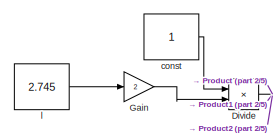
[diagram: Control Algorithm/vertical load distribution - part 1/5, top left region]
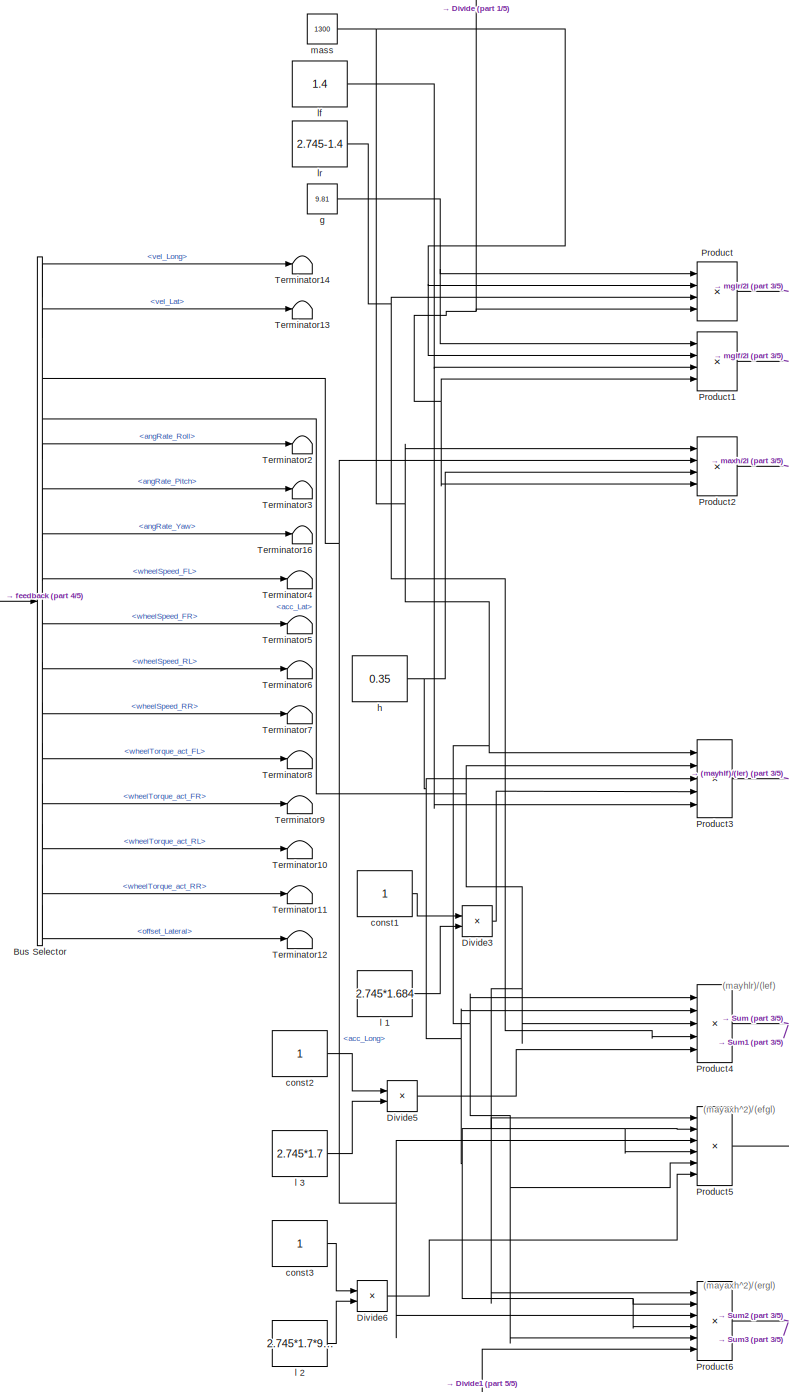
[diagram: Control Algorithm/vertical load distribution - part 2/5, center side, full height]
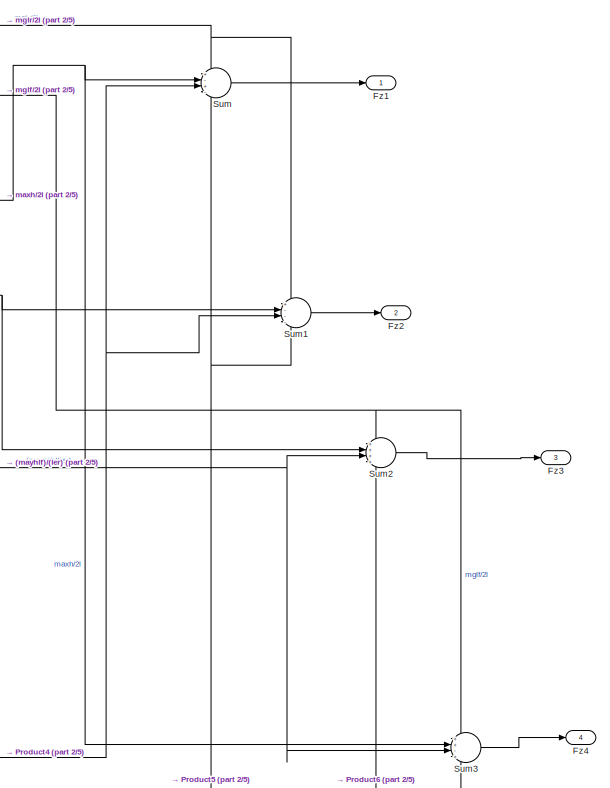
[diagram: Control Algorithm/vertical load distribution - part 3/5, middle right region]
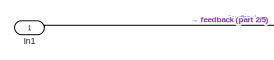
[diagram: Control Algorithm/vertical load distribution - part 4/5, middle left region]
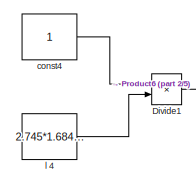
[diagram: Control Algorithm/vertical load distribution - part 5/5, bottom center region]
BLOCK [SubSystem] Control Algorithm/vertical load distribution
  Ports = [1, 4]
  RequestExecContextInheritance = off
  Variant = off
BLOCK [BusSelector] Control Algorithm/vertical load distribution/Bus Selector
  OutputAsBus = off
  Ports = [1, 16]
BLOCK [Product] Control Algorithm/vertical load distribution/Divide
  InputSameDT = off
  Inputs = */
  OutDataTypeStr = Inherit: Inherit via internal rule
  Ports = [2, 1]
  RndMeth = Floor
  SaturateOnIntegerOverflow = off
BLOCK [Product] Control Algorithm/vertical load distribution/Divide1
  InputSameDT = off
  Inputs = */
  OutDataTypeStr = Inherit: Inherit via internal rule
  Ports = [2, 1]
  RndMeth = Floor
  SaturateOnIntegerOverflow = off
BLOCK [Product] Control Algorithm/vertical load distribution/Divide3
  InputSameDT = off
  Inputs = */
  OutDataTypeStr = Inherit: Inherit via internal rule
  Ports = [2, 1]
  RndMeth = Floor
  SaturateOnIntegerOverflow = off
BLOCK [Product] Control Algorithm/vertical load distribution/Divide5
  InputSameDT = off
  Inputs = */
  OutDataTypeStr = Inherit: Inherit via internal rule
  Ports = [2, 1]
  RndMeth = Floor
  SaturateOnIntegerOverflow = off
BLOCK [Product] Control Algorithm/vertical load distribution/Divide6
  InputSameDT = off
  Inputs = */
  OutDataTypeStr = Inherit: Inherit via internal rule
  Ports = [2, 1]
  RndMeth = Floor
  SaturateOnIntegerOverflow = off
BLOCK [Outport] Control Algorithm/vertical load distribution/Fz1
  IconDisplay = Port number
BLOCK [Outport] Control Algorithm/vertical load distribution/Fz2
  IconDisplay = Port number
  Port = 2
BLOCK [Outport] Control Algorithm/vertical load distribution/Fz3
  IconDisplay = Port number
  Port = 3
BLOCK [Outport] Control Algorithm/vertical load distribution/Fz4
  IconDisplay = Port number
  Port = 4
BLOCK [Gain] Control Algorithm/vertical load distribution/Gain
  Gain = 2
  OutDataTypeStr = Inherit: Inherit via internal rule
  ParamDataTypeStr = Inherit: Inherit via internal rule
  SaturateOnIntegerOverflow = off
BLOCK [Inport] Control Algorithm/vertical load distribution/In1
  IconDisplay = Port number and signal name
BLOCK [Product] Control Algorithm/vertical load distribution/Product
  InputSameDT = off
  Inputs = 4
  OutDataTypeStr = Inherit: Inherit via internal rule
  Ports = [4, 1]
  RndMeth = Floor
  SaturateOnIntegerOverflow = off
BLOCK [Product] Control Algorithm/vertical load distribution/Product1
  InputSameDT = off
  Inputs = 4
  OutDataTypeStr = Inherit: Inherit via internal rule
  Ports = [4, 1]
  RndMeth = Floor
  SaturateOnIntegerOverflow = off
BLOCK [Product] Control Algorithm/vertical load distribution/Product2
  InputSameDT = off
  Inputs = 4
  OutDataTypeStr = Inherit: Inherit via internal rule
  Ports = [4, 1]
  RndMeth = Floor
  SaturateOnIntegerOverflow = off
BLOCK [Product] Control Algorithm/vertical load distribution/Product3
  InputSameDT = off
  Inputs = 5
  OutDataTypeStr = Inherit: Inherit via internal rule
  Ports = [5, 1]
  RndMeth = Floor
  SaturateOnIntegerOverflow = off
BLOCK [Product] Control Algorithm/vertical load distribution/Product4
  InputSameDT = off
  Inputs = 5
  OutDataTypeStr = Inherit: Inherit via internal rule
  Ports = [5, 1]
  RndMeth = Floor
  SaturateOnIntegerOverflow = off
BLOCK [Product] Control Algorithm/vertical load distribution/Product5
  InputSameDT = off
  Inputs = 6
  OutDataTypeStr = Inherit: Inherit via internal rule
  Ports = [6, 1]
  RndMeth = Floor
  SaturateOnIntegerOverflow = off
BLOCK [Product] Control Algorithm/vertical load distribution/Product6
  InputSameDT = off
  Inputs = 6
  OutDataTypeStr = Inherit: Inherit via internal rule
  Ports = [6, 1]
  RndMeth = Floor
  SaturateOnIntegerOverflow = off
BLOCK [Sum] Control Algorithm/vertical load distribution/Sum
  IconShape = round
  InputSameDT = off
  Inputs = +-+-
  OutDataTypeStr = Inherit: Inherit via internal rule
  Ports = [4, 1]
  SaturateOnIntegerOverflow = off
BLOCK [Sum] Control Algorithm/vertical load distribution/Sum1
  IconShape = round
  InputSameDT = off
  Inputs = +---
  OutDataTypeStr = Inherit: Inherit via internal rule
  Ports = [4, 1]
  SaturateOnIntegerOverflow = off
BLOCK [Sum] Control Algorithm/vertical load distribution/Sum2
  IconShape = round
  InputSameDT = off
  Inputs = ++++
  OutDataTypeStr = Inherit: Inherit via internal rule
  Ports = [4, 1]
  SaturateOnIntegerOverflow = off
BLOCK [Sum] Control Algorithm/vertical load distribution/Sum3
  IconShape = round
  InputSameDT = off
  Inputs = ++-+
  OutDataTypeStr = Inherit: Inherit via internal rule
  Ports = [4, 1]
  SaturateOnIntegerOverflow = off
BLOCK [Terminator] Control Algorithm/vertical load distribution/Terminator10
BLOCK [Terminator] Control Algorithm/vertical load distribution/Terminator11
BLOCK [Terminator] Control Algorithm/vertical load distribution/Terminator12
BLOCK [Terminator] Control Algorithm/vertical load distribution/Terminator13
BLOCK [Terminator] Control Algorithm/vertical load distribution/Terminator14
BLOCK [Terminator] Control Algorithm/vertical load distribution/Terminator16
BLOCK [Terminator] Control Algorithm/vertical load distribution/Terminator2
BLOCK [Terminator] Control Algorithm/vertical load distribution/Terminator3
BLOCK [Terminator] Control Algorithm/vertical load distribution/Terminator4
BLOCK [Terminator] Control Algorithm/vertical load distribution/Terminator5
BLOCK [Terminator] Control Algorithm/vertical load distribution/Terminator6
BLOCK [Terminator] Control Algorithm/vertical load distribution/Terminator7
BLOCK [Terminator] Control Algorithm/vertical load distribution/Terminator8
BLOCK [Terminator] Control Algorithm/vertical load distribution/Terminator9
BLOCK [Constant] Control Algorithm/vertical load distribution/const
BLOCK [Constant] Control Algorithm/vertical load distribution/const1
BLOCK [Constant] Control Algorithm/vertical load distribution/const2
BLOCK [Constant] Control Algorithm/vertical load distribution/const3
BLOCK [Constant] Control Algorithm/vertical load distribution/const4
BLOCK [Constant] Control Algorithm/vertical load distribution/g
  Value = 9.81
BLOCK [Constant] Control Algorithm/vertical load distribution/h
  Value = 0.35
BLOCK [Constant] Control Algorithm/vertical load distribution/l 
  Value = 2.745
BLOCK [Constant] Control Algorithm/vertical load distribution/l 1
  Value = 2.745*1.684
BLOCK [Constant] Control Algorithm/vertical load distribution/l 2
  Value = 2.745*1.7*9.81
BLOCK [Constant] Control Algorithm/vertical load distribution/l 3
  Value = 2.745*1.7
BLOCK [Constant] Control Algorithm/vertical load distribution/l 4
  Value = 2.745*1.684*9.81
BLOCK [Constant] Control Algorithm/vertical load distribution/lf 
  Value = 1.4
BLOCK [Constant] Control Algorithm/vertical load distribution/lr
  Value = 2.745-1.4
BLOCK [Constant] Control Algorithm/vertical load distribution/mass
  Value = 1300
BLOCK [FMU] FMU
  FMUDebugLogging = on
  FMUMode = CoSimulation
  FMUName = MED2018_VehicleModel.fmu
  FMUSampleTime = -1
  MaskDisplay = if (exist([Simulink.fileGenControl('get','CacheFolder') '\slprj\_fmu\52f44fd3a2122ebdf9d3aa1673f60aaa\MED2018_VehicleModel\model.png'],'file'))\n    image([Simulink.fileGenControl('get','CacheFolder') '\slprj\_fmu\52f44fd3a2122ebdf9d3aa1673f60aaa\MED2018_VehicleModel\model.png']);\n    text(0.03, 0.97, 'MED2018.VehicleModel', 'horizontalAlignment', 'left', 'verticalAlignment', 'top');\nelse\n    disp(...<+1077ch>
  MaskPromptString = Communication StepsizeCommunication stepsize between FMU and Simulink
  MaskType = MED2018.VehicleModel [Co-Simulation, v2.0]
  Ports = [5, 21]
BLOCK [Gain] Gain
  Gain = 3600/1000
  OutDataTypeStr = Inherit: Inherit via internal rule
  ParamDataTypeStr = Inherit: Inherit via internal rule
  SaturateOnIntegerOverflow = off
BLOCK [SubSystem] Gauge
  DialogController = hmiCreateDDGDialog
  IsWebBlock = on
  MaskHideContents = on
  Ports = []
  RequestExecContextInheritance = off
  Variant = off
BLOCK [Integrator] Integrator
  Ports = [1, 1]
BLOCK [Product] Product
  InputSameDT = off
  OutDataTypeStr = Inherit: Inherit via internal rule
  Ports = [2, 1]
  RndMeth = Floor
  SaturateOnIntegerOverflow = off
BLOCK [Product] Product1
  InputSameDT = off
  OutDataTypeStr = Inherit: Inherit via internal rule
  Ports = [2, 1]
  RndMeth = Floor
  SaturateOnIntegerOverflow = off
BLOCK [Display] Reward Function
  Decimation = 1
  Ports = [1]
BLOCK [Scope] Scope
  NumInputPorts = 1
  Ports = [1]
  ScopeSpecificationString = Simulink.scopes.TimeScopeBlockCfg('CurrentConfiguration', extmgr.ConfigurationSet(extmgr.Configuration('Core','General UI',true),extmgr.Configuration('Core','Source UI',true),extmgr.Configuration('Sources','WiredSimulink',true,'DataLoggingVariableName','ScopeData1'),extmgr.Configuration('Visuals','Time Domain',true,'SerializedDisplays',{struct('MinYLimReal','36.67508','MaxYLimReal','64.16729','YLa...<+1398ch>
BLOCK [Scope] Scope1
  NumInputPorts = 1
  Ports = [1]
  ScopeSpecificationString = Simulink.scopes.TimeScopeBlockCfg('CurrentConfiguration', extmgr.ConfigurationSet(extmgr.Configuration('Core','General UI',true),extmgr.Configuration('Core','Source UI',true),extmgr.Configuration('Sources','WiredSimulink',true,'DataLoggingVariableName','ScopeData2'),extmgr.Configuration('Visuals','Time Domain',true,'SerializedDisplays',{struct('MinYLimReal','-0.07166','MaxYLimReal','0.04432','YLab...<+1402ch>
BLOCK [Scope] Scope2
  NumInputPorts = 1
  Ports = [1]
  ScopeSpecificationString = Simulink.scopes.TimeScopeBlockCfg('CurrentConfiguration', extmgr.ConfigurationSet(extmgr.Configuration('Core','General UI',true),extmgr.Configuration('Core','Source UI',true),extmgr.Configuration('Sources','WiredSimulink',true,'DataLoggingVariableName','ScopeData3'),extmgr.Configuration('Visuals','Time Domain',true,'SerializedDisplays',{struct('MinYLimReal','-0.05624','MaxYLimReal','0.08123','YLab...<+1398ch>
BLOCK [Scope] Scope3
  NumInputPorts = 1
  Ports = [1]
  ScopeSpecificationString = Simulink.scopes.TimeScopeBlockCfg('CurrentConfiguration', extmgr.ConfigurationSet(extmgr.Configuration('Core','General UI',true),extmgr.Configuration('Core','Source UI',true),extmgr.Configuration('Sources','WiredSimulink',true,'DataLoggingVariableName','ScopeData11'),extmgr.Configuration('Visuals','Time Domain',true,'SerializedDisplays',{struct('MinYLimReal','-2.60586','MaxYLimReal','1.40217','YLa...<+1396ch>
BLOCK [Display] Simulation State
  Decimation = 1
  Ports = [1]
BLOCK [Sqrt] Sqrt
BLOCK [Sum] Sum
  IconShape = round
  InputSameDT = off
  Inputs = |++
  OutDataTypeStr = Inherit: Inherit via internal rule
  Ports = [2, 1]
  SaturateOnIntegerOverflow = off
BLOCK [Reference] XY Graph  REF=simulink/Sinks/XY Graph
  Ports = [2]
  SourceBlock = simulink/Sinks/XY Graph
  SourceProductBaseCode = SL
  SourceProductName = Simulink
  SourceType = XY scope.
BLOCK [Display] side slip 
  Decimation = 1
  Ports = [1]
BLOCK [SubSystem] side_slip_calc
  Ports = [2, 1]
  RequestExecContextInheritance = off
  Variant = off
BLOCK [Trigonometry] side_slip_calc/Trigonometric Function
  Operator = atan2
  Ports = [2, 1]
BLOCK [Outport] side_slip_calc/side_slip
  IconDisplay = Port number
BLOCK [Inport] side_slip_calc/vel_Lat
  IconDisplay = Port number
  Port = 2
BLOCK [Inport] side_slip_calc/vel_Long
  IconDisplay = Port number
BLOCK [Display] speed 
  Decimation = 1
  Ports = [1]
ANNOTATION Control Algorithm: fz1
ANNOTATION Control Algorithm: fz2
ANNOTATION Control Algorithm: fz3
ANNOTATION Control Algorithm: fz4
ANNOTATION Control Algorithm/vertical load distribution: (mayaxh^2)/(efgl)
ANNOTATION Control Algorithm/vertical load distribution: (mayaxh^2)/(ergl)
ANNOTATION Control Algorithm/vertical load distribution: (mayhlr)/(lef)
NET Bus Creator:1 -> Bus Selector:1, Control Algorithm:1
LINE Bus Selector1:1 -> FMU:1
LINE Bus Selector1:2 -> FMU:2
LINE Bus Selector1:3 -> FMU:3
LINE Bus Selector1:4 -> FMU:4
LINE Bus Selector1:5 -> FMU:5
LINE Bus Selector:1 -> Reward Function:1
LINE Bus Selector:2 -> Simulation State:1
LINE Control Algorithm/Bus Creator:1 -> Control Algorithm/Actuation:1
LINE Control Algorithm/FX_sum_calc/Bus Selector:1 -> Control Algorithm/FX_sum_calc/Terminator:1
LINE Control Algorithm/FX_sum_calc/Bus Selector:10 -> Control Algorithm/FX_sum_calc/Terminator6:1
LINE Control Algorithm/FX_sum_calc/Bus Selector:11 -> Control Algorithm/FX_sum_calc/Terminator7:1
LINE Control Algorithm/FX_sum_calc/Bus Selector:12 -> Control Algorithm/FX_sum_calc/Terminator8:1
LINE Control Algorithm/FX_sum_calc/Bus Selector:13 -> Control Algorithm/FX_sum_calc/Terminator9:1
LINE Control Algorithm/FX_sum_calc/Bus Selector:14 -> Control Algorithm/FX_sum_calc/Terminator10:1
LINE Control Algorithm/FX_sum_calc/Bus Selector:15 -> Control Algorithm/FX_sum_calc/Terminator11:1
LINE Control Algorithm/FX_sum_calc/Bus Selector:16 -> Control Algorithm/FX_sum_calc/Terminator12:1
LINE Control Algorithm/FX_sum_calc/Bus Selector:2 -> Control Algorithm/FX_sum_calc/Product1:1
LINE Control Algorithm/FX_sum_calc/Bus Selector:3 -> Control Algorithm/FX_sum_calc/Sum:1
LINE Control Algorithm/FX_sum_calc/Bus Selector:4 -> Control Algorithm/FX_sum_calc/Terminator1:1
LINE Control Algorithm/FX_sum_calc/Bus Selector:5 -> Control Algorithm/FX_sum_calc/Terminator2:1
LINE Control Algorithm/FX_sum_calc/Bus Selector:6 -> Control Algorithm/FX_sum_calc/Terminator3:1
LINE Control Algorithm/FX_sum_calc/Bus Selector:7 -> Control Algorithm/FX_sum_calc/Product1:2
LINE Control Algorithm/FX_sum_calc/Bus Selector:8 -> Control Algorithm/FX_sum_calc/Terminator4:1
LINE Control Algorithm/FX_sum_calc/Bus Selector:9 -> Control Algorithm/FX_sum_calc/Terminator5:1
LINE Control Algorithm/FX_sum_calc/Constant5:1 -> Control Algorithm/FX_sum_calc/Product:1
LINE Control Algorithm/FX_sum_calc/In1:1 -> Control Algorithm/FX_sum_calc/Bus Selector:1
LINE Control Algorithm/FX_sum_calc/Product1:1 -> Control Algorithm/FX_sum_calc/Sum:2
LINE Control Algorithm/FX_sum_calc/Product:1 -> Control Algorithm/FX_sum_calc/FX_sum:1
LINE Control Algorithm/FX_sum_calc/Sum:1 -> Control Algorithm/FX_sum_calc/Product:2
LINE Control Algorithm/FX_sum_calc:1 -> Control Algorithm/Scope:1
LINE Control Algorithm/FY_sum_calc/Bus Selector:1 -> Control Algorithm/FY_sum_calc/Product1:1
LINE Control Algorithm/FY_sum_calc/Bus Selector:10 -> Control Algorithm/FY_sum_calc/Terminator6:1
LINE Control Algorithm/FY_sum_calc/Bus Selector:11 -> Control Algorithm/FY_sum_calc/Terminator7:1
LINE Control Algorithm/FY_sum_calc/Bus Selector:12 -> Control Algorithm/FY_sum_calc/Terminator8:1
LINE Control Algorithm/FY_sum_calc/Bus Selector:13 -> Control Algorithm/FY_sum_calc/Terminator9:1
LINE Control Algorithm/FY_sum_calc/Bus Selector:14 -> Control Algorithm/FY_sum_calc/Terminator10:1
LINE Control Algorithm/FY_sum_calc/Bus Selector:15 -> Control Algorithm/FY_sum_calc/Terminator11:1
LINE Control Algorithm/FY_sum_calc/Bus Selector:16 -> Control Algorithm/FY_sum_calc/Terminator12:1
LINE Control Algorithm/FY_sum_calc/Bus Selector:2 -> Control Algorithm/FY_sum_calc/Terminator13:1
LINE Control Algorithm/FY_sum_calc/Bus Selector:3 -> Control Algorithm/FY_sum_calc/Terminator1:1
LINE Control Algorithm/FY_sum_calc/Bus Selector:4 -> Control Algorithm/FY_sum_calc/Sum:1
LINE Control Algorithm/FY_sum_calc/Bus Selector:5 -> Control Algorithm/FY_sum_calc/Terminator2:1
LINE Control Algorithm/FY_sum_calc/Bus Selector:6 -> Control Algorithm/FY_sum_calc/Terminator3:1
LINE Control Algorithm/FY_sum_calc/Bus Selector:7 -> Control Algorithm/FY_sum_calc/Product1:2
LINE Control Algorithm/FY_sum_calc/Bus Selector:8 -> Control Algorithm/FY_sum_calc/Terminator4:1
LINE Control Algorithm/FY_sum_calc/Bus Selector:9 -> Control Algorithm/FY_sum_calc/Terminator5:1
LINE Control Algorithm/FY_sum_calc/Constant5:1 -> Control Algorithm/FY_sum_calc/Product:1
LINE Control Algorithm/FY_sum_calc/In1:1 -> Control Algorithm/FY_sum_calc/Bus Selector:1
LINE Control Algorithm/FY_sum_calc/Product1:1 -> Control Algorithm/FY_sum_calc/Sum:2
LINE Control Algorithm/FY_sum_calc/Product:1 -> Control Algorithm/FY_sum_calc/FY_sum:1
LINE Control Algorithm/FY_sum_calc/Sum:1 -> Control Algorithm/FY_sum_calc/Product:2
LINE Control Algorithm/FY_sum_calc:1 -> Control Algorithm/Scope1:1
NET Control Algorithm/Feedback:1 -> Control Algorithm/FX_sum_calc:1, Control Algorithm/FY_sum_calc:1, Control Algorithm/alpha_calc:1, Control Algorithm/lamda_calc:1, Control Algorithm/roll_stifnes_calc 1:1, Control Algorithm/roll_stifnes_calc :1, Control Algorithm/speed control:1, Control Algorithm/steer angle block :1, Control Algorithm/vertical load distribution:1
LINE Control Algorithm/Mux1:1 -> Control Algorithm/Scope8:1
LINE Control Algorithm/Mux:1 -> Control Algorithm/Scope3:1
LINE Control Algorithm/Step:1 -> Control Algorithm/speed control:2
NET Control Algorithm/alpha_calc/Bus Selector:1 -> Control Algorithm/alpha_calc/MATLAB Function:1, Control Algorithm/alpha_calc/Scope3:1, Control Algorithm/alpha_calc/Terminator14:1, Control Algorithm/alpha_calc/side_slip_calc:1
LINE Control Algorithm/alpha_calc/Bus Selector:10 -> Control Algorithm/alpha_calc/Terminator6:1
LINE Control Algorithm/alpha_calc/Bus Selector:11 -> Control Algorithm/alpha_calc/Terminator7:1
LINE Control Algorithm/alpha_calc/Bus Selector:12 -> Control Algorithm/alpha_calc/Terminator8:1
LINE Control Algorithm/alpha_calc/Bus Selector:13 -> Control Algorithm/alpha_calc/Terminator9:1
LINE Control Algorithm/alpha_calc/Bus Selector:14 -> Control Algorithm/alpha_calc/Terminator10:1
LINE Control Algorithm/alpha_calc/Bus Selector:15 -> Control Algorithm/alpha_calc/Terminator11:1
LINE Control Algorithm/alpha_calc/Bus Selector:16 -> Control Algorithm/alpha_calc/Terminator12:1
NET Control Algorithm/alpha_calc/Bus Selector:2 -> Control Algorithm/alpha_calc/MATLAB Function:3, Control Algorithm/alpha_calc/Scope4:1, Control Algorithm/alpha_calc/Terminator13:1, Control Algorithm/alpha_calc/side_slip_calc:2
LINE Control Algorithm/alpha_calc/Bus Selector:3 -> Control Algorithm/alpha_calc/Terminator1:1
LINE Control Algorithm/alpha_calc/Bus Selector:4 -> Control Algorithm/alpha_calc/Terminator15:1
LINE Control Algorithm/alpha_calc/Bus Selector:5 -> Control Algorithm/alpha_calc/Terminator2:1
LINE Control Algorithm/alpha_calc/Bus Selector:6 -> Control Algorithm/alpha_calc/Terminator3:1
NET Control Algorithm/alpha_calc/Bus Selector:7 -> Control Algorithm/alpha_calc/Integrator:1, Control Algorithm/alpha_calc/MATLAB Function:5, Control Algorithm/alpha_calc/Scope1:1, Control Algorithm/alpha_calc/Terminator16:1
LINE Control Algorithm/alpha_calc/Bus Selector:8 -> Control Algorithm/alpha_calc/Terminator4:1
LINE Control Algorithm/alpha_calc/Bus Selector:9 -> Control Algorithm/alpha_calc/Terminator5:1
LINE Control Algorithm/alpha_calc/In1:1 -> Control Algorithm/alpha_calc/Bus Selector:1
NET Control Algorithm/alpha_calc/Integrator:1 -> Control Algorithm/alpha_calc/MATLAB Function:4, Control Algorithm/alpha_calc/Scope5:1
NET Control Algorithm/alpha_calc/MATLAB Function:1 -> Control Algorithm/alpha_calc/Mux:1, Control Algorithm/alpha_calc/Scope11:1, Control Algorithm/alpha_calc/alpha_fl:1
NET Control Algorithm/alpha_calc/MATLAB Function:2 -> Control Algorithm/alpha_calc/Mux:2, Control Algorithm/alpha_calc/Scope11:2, Control Algorithm/alpha_calc/alpha_fr:1
NET Control Algorithm/alpha_calc/MATLAB Function:3 -> Control Algorithm/alpha_calc/Mux:3, Control Algorithm/alpha_calc/Scope11:3, Control Algorithm/alpha_calc/Scope6:1, Control Algorithm/alpha_calc/alpha_rl:1
NET Control Algorithm/alpha_calc/MATLAB Function:4 -> Control Algorithm/alpha_calc/Mux:4, Control Algorithm/alpha_calc/Scope11:4, Control Algorithm/alpha_calc/alpha_rr:1
NET Control Algorithm/alpha_calc/MATLAB Function:5 -> Control Algorithm/alpha_calc/Mux:5, Control Algorithm/alpha_calc/Scope2:1, Control Algorithm/alpha_calc/deltafl:1
NET Control Algorithm/alpha_calc/MATLAB Function:6 -> Control Algorithm/alpha_calc/Mux:6, Control Algorithm/alpha_calc/deltafr:1
LINE Control Algorithm/alpha_calc/MATLAB Function:7 -> Control Algorithm/alpha_calc/Scope8:1
LINE Control Algorithm/alpha_calc/MATLAB Function:8 -> Control Algorithm/alpha_calc/Scope8:2
LINE Control Algorithm/alpha_calc/Mux:1 -> Control Algorithm/alpha_calc/Scope:1
LINE Control Algorithm/alpha_calc/side_slip_calc/Trigonometric Function:1 -> Control Algorithm/alpha_calc/side_slip_calc/side_slip:1
LINE Control Algorithm/alpha_calc/side_slip_calc/vel_Lat:1 -> Control Algorithm/alpha_calc/side_slip_calc/Trigonometric Function:1
LINE Control Algorithm/alpha_calc/side_slip_calc/vel_Long:1 -> Control Algorithm/alpha_calc/side_slip_calc/Trigonometric Function:2
NET Control Algorithm/alpha_calc/side_slip_calc:1 -> Control Algorithm/alpha_calc/MATLAB Function:2, Control Algorithm/alpha_calc/Scope8:3, Control Algorithm/alpha_calc/Scope9:1
LINE Control Algorithm/alpha_calc:5 -> Control Algorithm/lamda_calc:2
LINE Control Algorithm/alpha_calc:6 -> Control Algorithm/lamda_calc:3
NET Control Algorithm/lamda_calc/Bus Selector:1 -> Control Algorithm/lamda_calc/Sum:1, Control Algorithm/lamda_calc/Terminator14:1
LINE Control Algorithm/lamda_calc/Bus Selector:10 -> Control Algorithm/lamda_calc/Terminator6:1
LINE Control Algorithm/lamda_calc/Bus Selector:11 -> Control Algorithm/lamda_calc/Terminator7:1
LINE Control Algorithm/lamda_calc/Bus Selector:12 -> Control Algorithm/lamda_calc/Terminator8:1
LINE Control Algorithm/lamda_calc/Bus Selector:13 -> Control Algorithm/lamda_calc/Terminator9:1
LINE Control Algorithm/lamda_calc/Bus Selector:14 -> Control Algorithm/lamda_calc/Terminator10:1
LINE Control Algorithm/lamda_calc/Bus Selector:15 -> Control Algorithm/lamda_calc/Terminator11:1
LINE Control Algorithm/lamda_calc/Bus Selector:16 -> Control Algorithm/lamda_calc/Terminator12:1
NET Control Algorithm/lamda_calc/Bus Selector:2 -> Control Algorithm/lamda_calc/Sum2:1, Control Algorithm/lamda_calc/Terminator13:1
LINE Control Algorithm/lamda_calc/Bus Selector:3 -> Control Algorithm/lamda_calc/Terminator1:1
LINE Control Algorithm/lamda_calc/Bus Selector:4 -> Control Algorithm/lamda_calc/Terminator15:1
LINE Control Algorithm/lamda_calc/Bus Selector:5 -> Control Algorithm/lamda_calc/Terminator2:1
LINE Control Algorithm/lamda_calc/Bus Selector:6 -> Control Algorithm/lamda_calc/Terminator3:1
NET Control Algorithm/lamda_calc/Bus Selector:7 -> Control Algorithm/lamda_calc/Product2:2, Control Algorithm/lamda_calc/Product:2, Control Algorithm/lamda_calc/Terminator16:1
NET Control Algorithm/lamda_calc/Bus Selector:8 -> Control Algorithm/lamda_calc/Gain:1, Control Algorithm/lamda_calc/Scope1:1, Control Algorithm/lamda_calc/Terminator4:1
NET Control Algorithm/lamda_calc/Bus Selector:9 -> Control Algorithm/lamda_calc/Scope1:2, Control Algorithm/lamda_calc/Terminator5:1
LINE Control Algorithm/lamda_calc/Constant1:1 -> Control Algorithm/lamda_calc/Product2:1
LINE Control Algorithm/lamda_calc/Constant2:1 -> Control Algorithm/lamda_calc/Product4:2
LINE Control Algorithm/lamda_calc/Constant:1 -> Control Algorithm/lamda_calc/Product:1
LINE Control Algorithm/lamda_calc/Divide:1 -> Control Algorithm/lamda_calc/Scope2:1
NET Control Algorithm/lamda_calc/Gain:1 -> Control Algorithm/lamda_calc/MinMax:1, Control Algorithm/lamda_calc/Scope:2, Control Algorithm/lamda_calc/Sum3:1
LINE Control Algorithm/lamda_calc/In1:1 -> Control Algorithm/lamda_calc/Bus Selector:1
LINE Control Algorithm/lamda_calc/MinMax:1 -> Control Algorithm/lamda_calc/Divide:2
LINE Control Algorithm/lamda_calc/Product1:1 -> Control Algorithm/lamda_calc/Sum1:1
LINE Control Algorithm/lamda_calc/Product2:1 -> Control Algorithm/lamda_calc/Sum2:2
LINE Control Algorithm/lamda_calc/Product3:1 -> Control Algorithm/lamda_calc/Sum1:2
NET Control Algorithm/lamda_calc/Product4:1 -> Control Algorithm/lamda_calc/Trigonometric Function1:1, Control Algorithm/lamda_calc/Trigonometric Function:1
LINE Control Algorithm/lamda_calc/Product:1 -> Control Algorithm/lamda_calc/Sum:2
NET Control Algorithm/lamda_calc/Sum1:1 -> Control Algorithm/lamda_calc/MinMax:2, Control Algorithm/lamda_calc/Scope:1, Control Algorithm/lamda_calc/Sum3:2, Control Algorithm/lamda_calc/vfl:1
LINE Control Algorithm/lamda_calc/Sum2:1 -> Control Algorithm/lamda_calc/Product3:1
LINE Control Algorithm/lamda_calc/Sum3:1 -> Control Algorithm/lamda_calc/Divide:1
LINE Control Algorithm/lamda_calc/Sum:1 -> Control Algorithm/lamda_calc/Product1:1
LINE Control Algorithm/lamda_calc/Trigonometric Function1:1 -> Control Algorithm/lamda_calc/Product3:2
LINE Control Algorithm/lamda_calc/Trigonometric Function:1 -> Control Algorithm/lamda_calc/Product1:2
LINE Control Algorithm/lamda_calc/delta_fl:1 -> Control Algorithm/lamda_calc/Product4:1
LINE Control Algorithm/roll_stifnes_calc /Bus Selector:1 -> Control Algorithm/roll_stifnes_calc /Terminator14:1
LINE Control Algorithm/roll_stifnes_calc /Bus Selector:10 -> Control Algorithm/roll_stifnes_calc /Terminator6:1
LINE Control Algorithm/roll_stifnes_calc /Bus Selector:11 -> Control Algorithm/roll_stifnes_calc /Terminator7:1
LINE Control Algorithm/roll_stifnes_calc /Bus Selector:12 -> Control Algorithm/roll_stifnes_calc /Terminator8:1
LINE Control Algorithm/roll_stifnes_calc /Bus Selector:13 -> Control Algorithm/roll_stifnes_calc /Terminator9:1
LINE Control Algorithm/roll_stifnes_calc /Bus Selector:14 -> Control Algorithm/roll_stifnes_calc /Terminator10:1
LINE Control Algorithm/roll_stifnes_calc /Bus Selector:15 -> Control Algorithm/roll_stifnes_calc /Terminator11:1
LINE Control Algorithm/roll_stifnes_calc /Bus Selector:16 -> Control Algorithm/roll_stifnes_calc /Terminator12:1
LINE Control Algorithm/roll_stifnes_calc /Bus Selector:2 -> Control Algorithm/roll_stifnes_calc /Terminator13:1
LINE Control Algorithm/roll_stifnes_calc /Bus Selector:3 -> Control Algorithm/roll_stifnes_calc /Terminator1:1
NET Control Algorithm/roll_stifnes_calc /Bus Selector:4 -> Control Algorithm/roll_stifnes_calc /Divide:1, Control Algorithm/roll_stifnes_calc /Terminator15:1
NET Control Algorithm/roll_stifnes_calc /Bus Selector:5 -> Control Algorithm/roll_stifnes_calc /Integrator:1, Control Algorithm/roll_stifnes_calc /Terminator2:1
LINE Control Algorithm/roll_stifnes_calc /Bus Selector:6 -> Control Algorithm/roll_stifnes_calc /Terminator3:1
LINE Control Algorithm/roll_stifnes_calc /Bus Selector:7 -> Control Algorithm/roll_stifnes_calc /Terminator16:1
LINE Control Algorithm/roll_stifnes_calc /Bus Selector:8 -> Control Algorithm/roll_stifnes_calc /Terminator4:1
LINE Control Algorithm/roll_stifnes_calc /Bus Selector:9 -> Control Algorithm/roll_stifnes_calc /Terminator5:1
LINE Control Algorithm/roll_stifnes_calc /Constant1:1 -> Control Algorithm/roll_stifnes_calc /Sum1:2
LINE Control Algorithm/roll_stifnes_calc /Constant2:1 -> Control Algorithm/roll_stifnes_calc /Sum2:2
NET Control Algorithm/roll_stifnes_calc /Constant:1 -> Control Algorithm/roll_stifnes_calc /Sum1:1, Control Algorithm/roll_stifnes_calc /Sum2:1, Control Algorithm/roll_stifnes_calc /Sum:2
LINE Control Algorithm/roll_stifnes_calc /Divide1:1 -> Control Algorithm/roll_stifnes_calc /front_roll_stifnes:1
LINE Control Algorithm/roll_stifnes_calc /Divide2:1 -> Control Algorithm/roll_stifnes_calc /rear_roll_stifnes:1
LINE Control Algorithm/roll_stifnes_calc /Divide:1 -> Control Algorithm/roll_stifnes_calc /Sum:1
NET Control Algorithm/roll_stifnes_calc /Gain:1 -> Control Algorithm/roll_stifnes_calc /Divide1:1, Control Algorithm/roll_stifnes_calc /Divide2:1
LINE Control Algorithm/roll_stifnes_calc /In1:1 -> Control Algorithm/roll_stifnes_calc /Bus Selector:1
LINE Control Algorithm/roll_stifnes_calc /Integrator:1 -> Control Algorithm/roll_stifnes_calc /Divide:2
LINE Control Algorithm/roll_stifnes_calc /Sum1:1 -> Control Algorithm/roll_stifnes_calc /Divide2:2
LINE Control Algorithm/roll_stifnes_calc /Sum2:1 -> Control Algorithm/roll_stifnes_calc /Divide1:2
LINE Control Algorithm/roll_stifnes_calc /Sum:1 -> Control Algorithm/roll_stifnes_calc /Gain:1
LINE Control Algorithm/roll_stifnes_calc 1/Bus Selector:1 -> Control Algorithm/roll_stifnes_calc 1/Terminator14:1
LINE Control Algorithm/roll_stifnes_calc 1/Bus Selector:10 -> Control Algorithm/roll_stifnes_calc 1/Terminator6:1
LINE Control Algorithm/roll_stifnes_calc 1/Bus Selector:11 -> Control Algorithm/roll_stifnes_calc 1/Terminator7:1
LINE Control Algorithm/roll_stifnes_calc 1/Bus Selector:12 -> Control Algorithm/roll_stifnes_calc 1/Terminator8:1
LINE Control Algorithm/roll_stifnes_calc 1/Bus Selector:13 -> Control Algorithm/roll_stifnes_calc 1/Terminator9:1
LINE Control Algorithm/roll_stifnes_calc 1/Bus Selector:14 -> Control Algorithm/roll_stifnes_calc 1/Terminator10:1
LINE Control Algorithm/roll_stifnes_calc 1/Bus Selector:15 -> Control Algorithm/roll_stifnes_calc 1/Terminator11:1
LINE Control Algorithm/roll_stifnes_calc 1/Bus Selector:16 -> Control Algorithm/roll_stifnes_calc 1/Terminator12:1
LINE Control Algorithm/roll_stifnes_calc 1/Bus Selector:2 -> Control Algorithm/roll_stifnes_calc 1/Terminator13:1
LINE Control Algorithm/roll_stifnes_calc 1/Bus Selector:3 -> Control Algorithm/roll_stifnes_calc 1/Product2:2
LINE Control Algorithm/roll_stifnes_calc 1/Bus Selector:4 -> Control Algorithm/roll_stifnes_calc 1/Product3:2
LINE Control Algorithm/roll_stifnes_calc 1/Bus Selector:5 -> Control Algorithm/roll_stifnes_calc 1/Terminator2:1
LINE Control Algorithm/roll_stifnes_calc 1/Bus Selector:6 -> Control Algorithm/roll_stifnes_calc 1/Terminator3:1
LINE Control Algorithm/roll_stifnes_calc 1/Bus Selector:7 -> Control Algorithm/roll_stifnes_calc 1/Terminator16:1
LINE Control Algorithm/roll_stifnes_calc 1/Bus Selector:8 -> Control Algorithm/roll_stifnes_calc 1/Terminator4:1
LINE Control Algorithm/roll_stifnes_calc 1/Bus Selector:9 -> Control Algorithm/roll_stifnes_calc 1/Terminator5:1
NET Control Algorithm/roll_stifnes_calc 1/Divide1:1 -> Control Algorithm/roll_stifnes_calc 1/Sum1:3, Control Algorithm/roll_stifnes_calc 1/Sum:1
NET Control Algorithm/roll_stifnes_calc 1/Divide2:1 -> Control Algorithm/roll_stifnes_calc 1/Sum2:3, Control Algorithm/roll_stifnes_calc 1/Sum3:3
NET Control Algorithm/roll_stifnes_calc 1/Divide:1 -> Control Algorithm/roll_stifnes_calc 1/Product1:4, Control Algorithm/roll_stifnes_calc 1/Product2:4, Control Algorithm/roll_stifnes_calc 1/Product:4
LINE Control Algorithm/roll_stifnes_calc 1/Gain:1 -> Control Algorithm/roll_stifnes_calc 1/Divide:2
LINE Control Algorithm/roll_stifnes_calc 1/In1:1 -> Control Algorithm/roll_stifnes_calc 1/Bus Selector:1
NET Control Algorithm/roll_stifnes_calc 1/Product1:1 -> Control Algorithm/roll_stifnes_calc 1/Sum2:1, Control Algorithm/roll_stifnes_calc 1/Sum3:1
NET Control Algorithm/roll_stifnes_calc 1/Product2:1 -> Control Algorithm/roll_stifnes_calc 1/Sum1:2, Control Algorithm/roll_stifnes_calc 1/Sum2:2, Control Algorithm/roll_stifnes_calc 1/Sum3:2, Control Algorithm/roll_stifnes_calc 1/Sum:3
NET Control Algorithm/roll_stifnes_calc 1/Product3:1 -> Control Algorithm/roll_stifnes_calc 1/Divide1:1, Control Algorithm/roll_stifnes_calc 1/Divide2:1
NET Control Algorithm/roll_stifnes_calc 1/Product:1 -> Control Algorithm/roll_stifnes_calc 1/Sum1:1, Control Algorithm/roll_stifnes_calc 1/Sum:2
LINE Control Algorithm/roll_stifnes_calc 1/Roll_stifnes_front:1 -> Control Algorithm/roll_stifnes_calc 1/Divide1:2
LINE Control Algorithm/roll_stifnes_calc 1/Roll_stifnes_rear :1 -> Control Algorithm/roll_stifnes_calc 1/Divide2:2
LINE Control Algorithm/roll_stifnes_calc 1/Sum1:1 -> Control Algorithm/roll_stifnes_calc 1/FZfr:1
LINE Control Algorithm/roll_stifnes_calc 1/Sum2:1 -> Control Algorithm/roll_stifnes_calc 1/FZrl:1
LINE Control Algorithm/roll_stifnes_calc 1/Sum3:1 -> Control Algorithm/roll_stifnes_calc 1/FZrr:1
LINE Control Algorithm/roll_stifnes_calc 1/Sum:1 -> Control Algorithm/roll_stifnes_calc 1/FZfl:1
LINE Control Algorithm/roll_stifnes_calc 1/const:1 -> Control Algorithm/roll_stifnes_calc 1/Divide:1
LINE Control Algorithm/roll_stifnes_calc 1/df:1 -> Control Algorithm/roll_stifnes_calc 1/Divide1:3
LINE Control Algorithm/roll_stifnes_calc 1/dr:1 -> Control Algorithm/roll_stifnes_calc 1/Divide2:3
NET Control Algorithm/roll_stifnes_calc 1/g:1 -> Control Algorithm/roll_stifnes_calc 1/Product1:1, Control Algorithm/roll_stifnes_calc 1/Product:1
NET Control Algorithm/roll_stifnes_calc 1/h:1 -> Control Algorithm/roll_stifnes_calc 1/Product2:3, Control Algorithm/roll_stifnes_calc 1/Product3:3
LINE Control Algorithm/roll_stifnes_calc 1/l :1 -> Control Algorithm/roll_stifnes_calc 1/Gain:1
LINE Control Algorithm/roll_stifnes_calc 1/lf :1 -> Control Algorithm/roll_stifnes_calc 1/Product1:3
LINE Control Algorithm/roll_stifnes_calc 1/lr:1 -> Control Algorithm/roll_stifnes_calc 1/Product:3
NET Control Algorithm/roll_stifnes_calc 1/mass:1 -> Control Algorithm/roll_stifnes_calc 1/Product1:2, Control Algorithm/roll_stifnes_calc 1/Product2:1, Control Algorithm/roll_stifnes_calc 1/Product3:1, Control Algorithm/roll_stifnes_calc 1/Product:2
NET Control Algorithm/roll_stifnes_calc 1:1 -> Control Algorithm/Mux:1, Control Algorithm/Scope4:1
NET Control Algorithm/roll_stifnes_calc 1:2 -> Control Algorithm/Mux:2, Control Algorithm/Scope5:1
NET Control Algorithm/roll_stifnes_calc 1:3 -> Control Algorithm/Mux:3, Control Algorithm/Scope6:1
NET Control Algorithm/roll_stifnes_calc 1:4 -> Control Algorithm/Mux:4, Control Algorithm/Scope7:1
NET Control Algorithm/roll_stifnes_calc :1 -> Control Algorithm/Mux1:1, Control Algorithm/roll_stifnes_calc 1:2
NET Control Algorithm/roll_stifnes_calc :2 -> Control Algorithm/Mux1:2, Control Algorithm/roll_stifnes_calc 1:3
LINE Control Algorithm/speed control/Bus Selector:1 -> Control Algorithm/speed control/Terminator:1
LINE Control Algorithm/speed control/Bus Selector:10 -> Control Algorithm/speed control/Terminator6:1
LINE Control Algorithm/speed control/Bus Selector:11 -> Control Algorithm/speed control/Terminator7:1
LINE Control Algorithm/speed control/Bus Selector:12 -> Control Algorithm/speed control/Terminator8:1
LINE Control Algorithm/speed control/Bus Selector:13 -> Control Algorithm/speed control/Terminator9:1
LINE Control Algorithm/speed control/Bus Selector:14 -> Control Algorithm/speed control/Terminator10:1
LINE Control Algorithm/speed control/Bus Selector:15 -> Control Algorithm/speed control/Terminator11:1
LINE Control Algorithm/speed control/Bus Selector:16 -> Control Algorithm/speed control/Terminator12:1
LINE Control Algorithm/speed control/Bus Selector:2 -> Control Algorithm/speed control/Terminator13:1
LINE Control Algorithm/speed control/Bus Selector:3 -> Control Algorithm/speed control/Terminator14:1
LINE Control Algorithm/speed control/Bus Selector:4 -> Control Algorithm/speed control/Terminator1:1
LINE Control Algorithm/speed control/Bus Selector:5 -> Control Algorithm/speed control/Terminator2:1
LINE Control Algorithm/speed control/Bus Selector:6 -> Control Algorithm/speed control/Terminator3:1
LINE Control Algorithm/speed control/Bus Selector:7 -> Control Algorithm/speed control/Terminator15:1
LINE Control Algorithm/speed control/Bus Selector:8 -> Control Algorithm/speed control/Terminator4:1
LINE Control Algorithm/speed control/Bus Selector:9 -> Control Algorithm/speed control/Terminator5:1
LINE Control Algorithm/speed control/In1:1 -> Control Algorithm/speed control/Bus Selector:1
NET Control Algorithm/speed control/speed_ref(km//h) :1 -> Control Algorithm/speed control/Terminator16:1, Control Algorithm/speed control/WT_FL :1, Control Algorithm/speed control/WT_FR:1, Control Algorithm/speed control/WT_RL:1, Control Algorithm/speed control/WT_RR:1
LINE Control Algorithm/speed control:1 -> Control Algorithm/Bus Creator:2
LINE Control Algorithm/speed control:2 -> Control Algorithm/Bus Creator:3
LINE Control Algorithm/speed control:3 -> Control Algorithm/Bus Creator:4
LINE Control Algorithm/speed control:4 -> Control Algorithm/Bus Creator:5
NET Control Algorithm/steer angle block /Bus Selector:1 -> Control Algorithm/steer angle block /Display:1, Control Algorithm/steer angle block /MATLAB Function:1
LINE Control Algorithm/steer angle block /Bus Selector:10 -> Control Algorithm/steer angle block /Terminator4:1
LINE Control Algorithm/steer angle block /Bus Selector:11 -> Control Algorithm/steer angle block /Terminator5:1
LINE Control Algorithm/steer angle block /Bus Selector:12 -> Control Algorithm/steer angle block /Terminator6:1
LINE Control Algorithm/steer angle block /Bus Selector:13 -> Control Algorithm/steer angle block /Terminator7:1
LINE Control Algorithm/steer angle block /Bus Selector:14 -> Control Algorithm/steer angle block /Terminator8:1
LINE Control Algorithm/steer angle block /Bus Selector:15 -> Control Algorithm/steer angle block /Terminator9:1
LINE Control Algorithm/steer angle block /Bus Selector:16 -> Control Algorithm/steer angle block /Terminator10:1
LINE Control Algorithm/steer angle block /Bus Selector:17 -> Control Algorithm/steer angle block /Terminator11:1
NET Control Algorithm/steer angle block /Bus Selector:18 -> Control Algorithm/steer angle block /Gain:1, Control Algorithm/steer angle block /Terminator12:1
NET Control Algorithm/steer angle block /Bus Selector:2 -> Control Algorithm/steer angle block /Display1:1, Control Algorithm/steer angle block /MATLAB Function:2
LINE Control Algorithm/steer angle block /Bus Selector:3 -> Control Algorithm/steer angle block /Terminator:1
LINE Control Algorithm/steer angle block /Bus Selector:4 -> Control Algorithm/steer angle block /Terminator13:1
LINE Control Algorithm/steer angle block /Bus Selector:5 -> Control Algorithm/steer angle block /Terminator14:1
LINE Control Algorithm/steer angle block /Bus Selector:6 -> Control Algorithm/steer angle block /Terminator1:1
LINE Control Algorithm/steer angle block /Bus Selector:7 -> Control Algorithm/steer angle block /Terminator2:1
LINE Control Algorithm/steer angle block /Bus Selector:8 -> Control Algorithm/steer angle block /Terminator3:1
NET Control Algorithm/steer angle block /Bus Selector:9 -> Control Algorithm/steer angle block /Integrator:1, Control Algorithm/steer angle block /Scope3:1, Control Algorithm/steer angle block /Terminator15:1
LINE Control Algorithm/steer angle block /Gain:1 -> Control Algorithm/steer angle block /PID Controller:1
LINE Control Algorithm/steer angle block /In1:1 -> Control Algorithm/steer angle block /Bus Selector:1
NET Control Algorithm/steer angle block /Integrator:1 -> Control Algorithm/steer angle block /Mux:1, Control Algorithm/steer angle block /Sum:2
NET Control Algorithm/steer angle block /MATLAB Function:1 -> Control Algorithm/steer angle block /Mux:2, Control Algorithm/steer angle block /Sum:1
LINE Control Algorithm/steer angle block /MATLAB Function:3 -> Control Algorithm/steer angle block /Mux1:1
LINE Control Algorithm/steer angle block /MATLAB Function:4 -> Control Algorithm/steer angle block /Mux1:2
LINE Control Algorithm/steer angle block /Manual Switch:1 -> Control Algorithm/steer angle block /steer :1
LINE Control Algorithm/steer angle block /Mux1:1 -> Control Algorithm/steer angle block /Scope2:1
LINE Control Algorithm/steer angle block /Mux:1 -> Control Algorithm/steer angle block /Scope1:1
NET Control Algorithm/steer angle block /PID Controller1:1 -> Control Algorithm/steer angle block /Manual Switch:2, Control Algorithm/steer angle block /Mux:4
LINE Control Algorithm/steer angle block /PID Controller:1 -> Control Algorithm/steer angle block /Manual Switch:1
NET Control Algorithm/steer angle block /Sum:1 -> Control Algorithm/steer angle block /Mux:3, Control Algorithm/steer angle block /PID Controller1:1
NET Control Algorithm/steer angle block :1 -> Control Algorithm/Bus Creator:1, Control Algorithm/Scope2:1
LINE Control Algorithm/vertical load distribution/Bus Selector:1 -> Control Algorithm/vertical load distribution/Terminator14:1
LINE Control Algorithm/vertical load distribution/Bus Selector:10 -> Control Algorithm/vertical load distribution/Terminator6:1
LINE Control Algorithm/vertical load distribution/Bus Selector:11 -> Control Algorithm/vertical load distribution/Terminator7:1
LINE Control Algorithm/vertical load distribution/Bus Selector:12 -> Control Algorithm/vertical load distribution/Terminator8:1
LINE Control Algorithm/vertical load distribution/Bus Selector:13 -> Control Algorithm/vertical load distribution/Terminator9:1
LINE Control Algorithm/vertical load distribution/Bus Selector:14 -> Control Algorithm/vertical load distribution/Terminator10:1
LINE Control Algorithm/vertical load distribution/Bus Selector:15 -> Control Algorithm/vertical load distribution/Terminator11:1
LINE Control Algorithm/vertical load distribution/Bus Selector:16 -> Control Algorithm/vertical load distribution/Terminator12:1
LINE Control Algorithm/vertical load distribution/Bus Selector:2 -> Control Algorithm/vertical load distribution/Terminator13:1
NET Control Algorithm/vertical load distribution/Bus Selector:3 -> Control Algorithm/vertical load distribution/Product2:2, Control Algorithm/vertical load distribution/Product5:3, Control Algorithm/vertical load distribution/Product6:3
NET Control Algorithm/vertical load distribution/Bus Selector:4 -> Control Algorithm/vertical load distribution/Product3:2, Control Algorithm/vertical load distribution/Product4:3, Control Algorithm/vertical load distribution/Product5:1, Control Algorithm/vertical load distribution/Product6:1
LINE Control Algorithm/vertical load distribution/Bus Selector:5 -> Control Algorithm/vertical load distribution/Terminator2:1
LINE Control Algorithm/vertical load distribution/Bus Selector:6 -> Control Algorithm/vertical load distribution/Terminator3:1
LINE Control Algorithm/vertical load distribution/Bus Selector:7 -> Control Algorithm/vertical load distribution/Terminator16:1
LINE Control Algorithm/vertical load distribution/Bus Selector:8 -> Control Algorithm/vertical load distribution/Terminator4:1
LINE Control Algorithm/vertical load distribution/Bus Selector:9 -> Control Algorithm/vertical load distribution/Terminator5:1
LINE Control Algorithm/vertical load distribution/Divide1:1 -> Control Algorithm/vertical load distribution/Product6:6
LINE Control Algorithm/vertical load distribution/Divide3:1 -> Control Algorithm/vertical load distribution/Product3:4
LINE Control Algorithm/vertical load distribution/Divide5:1 -> Control Algorithm/vertical load distribution/Product4:5
LINE Control Algorithm/vertical load distribution/Divide6:1 -> Control Algorithm/vertical load distribution/Product5:6
NET Control Algorithm/vertical load distribution/Divide:1 -> Control Algorithm/vertical load distribution/Product1:4, Control Algorithm/vertical load distribution/Product2:4, Control Algorithm/vertical load distribution/Product:4
LINE Control Algorithm/vertical load distribution/Gain:1 -> Control Algorithm/vertical load distribution/Divide:2
LINE Control Algorithm/vertical load distribution/In1:1 -> Control Algorithm/vertical load distribution/Bus Selector:1
NET Control Algorithm/vertical load distribution/Product1:1 -> Control Algorithm/vertical load distribution/Sum2:1, Control Algorithm/vertical load distribution/Sum3:1
NET Control Algorithm/vertical load distribution/Product2:1 -> Control Algorithm/vertical load distribution/Sum1:2, Control Algorithm/vertical load distribution/Sum2:2, Control Algorithm/vertical load distribution/Sum3:2, Control Algorithm/vertical load distribution/Sum:2
NET Control Algorithm/vertical load distribution/Product3:1 -> Control Algorithm/vertical load distribution/Sum2:3, Control Algorithm/vertical load distribution/Sum3:3
NET Control Algorithm/vertical load distribution/Product4:1 -> Control Algorithm/vertical load distribution/Sum1:3, Control Algorithm/vertical load distribution/Sum:3
NET Control Algorithm/vertical load distribution/Product5:1 -> Control Algorithm/vertical load distribution/Sum1:4, Control Algorithm/vertical load distribution/Sum:4
NET Control Algorithm/vertical load distribution/Product6:1 -> Control Algorithm/vertical load distribution/Sum2:4, Control Algorithm/vertical load distribution/Sum3:4
NET Control Algorithm/vertical load distribution/Product:1 -> Control Algorithm/vertical load distribution/Sum1:1, Control Algorithm/vertical load distribution/Sum:1
LINE Control Algorithm/vertical load distribution/Sum1:1 -> Control Algorithm/vertical load distribution/Fz2:1
LINE Control Algorithm/vertical load distribution/Sum2:1 -> Control Algorithm/vertical load distribution/Fz3:1
LINE Control Algorithm/vertical load distribution/Sum3:1 -> Control Algorithm/vertical load distribution/Fz4:1
LINE Control Algorithm/vertical load distribution/Sum:1 -> Control Algorithm/vertical load distribution/Fz1:1
LINE Control Algorithm/vertical load distribution/const1:1 -> Control Algorithm/vertical load distribution/Divide3:1
LINE Control Algorithm/vertical load distribution/const2:1 -> Control Algorithm/vertical load distribution/Divide5:1
LINE Control Algorithm/vertical load distribution/const3:1 -> Control Algorithm/vertical load distribution/Divide6:1
LINE Control Algorithm/vertical load distribution/const4:1 -> Control Algorithm/vertical load distribution/Divide1:1
LINE Control Algorithm/vertical load distribution/const:1 -> Control Algorithm/vertical load distribution/Divide:1
NET Control Algorithm/vertical load distribution/g:1 -> Control Algorithm/vertical load distribution/Product1:1, Control Algorithm/vertical load distribution/Product:1
NET Control Algorithm/vertical load distribution/h:1 -> Control Algorithm/vertical load distribution/Product2:3, Control Algorithm/vertical load distribution/Product3:3, Control Algorithm/vertical load distribution/Product4:2, Control Algorithm/vertical load distribution/Product5:2, Control Algorithm/vertical load distribution/Product5:4, Control Algorithm/vertical load distribution/Product6:2, Control Algorithm/vertical load distribution/Product6:4
LINE Control Algorithm/vertical load distribution/l 1:1 -> Control Algorithm/vertical load distribution/Divide3:2
LINE Control Algorithm/vertical load distribution/l 2:1 -> Control Algorithm/vertical load distribution/Divide6:2
LINE Control Algorithm/vertical load distribution/l 3:1 -> Control Algorithm/vertical load distribution/Divide5:2
LINE Control Algorithm/vertical load distribution/l 4:1 -> Control Algorithm/vertical load distribution/Divide1:2
LINE Control Algorithm/vertical load distribution/l :1 -> Control Algorithm/vertical load distribution/Gain:1
NET Control Algorithm/vertical load distribution/lf :1 -> Control Algorithm/vertical load distribution/Product1:3, Control Algorithm/vertical load distribution/Product3:5
NET Control Algorithm/vertical load distribution/lr:1 -> Control Algorithm/vertical load distribution/Product4:4, Control Algorithm/vertical load distribution/Product:3
NET Control Algorithm/vertical load distribution/mass:1 -> Control Algorithm/vertical load distribution/Product1:2, Control Algorithm/vertical load distribution/Product2:1, Control Algorithm/vertical load distribution/Product3:1, Control Algorithm/vertical load distribution/Product4:1, Control Algorithm/vertical load distribution/Product5:5, Control Algorithm/vertical load distribution/Product6:5, Control Algorithm/vertical load distribution/Product:2
LINE Control Algorithm/vertical load distribution:1 -> Control Algorithm/Scope9:1
LINE Control Algorithm/vertical load distribution:2 -> Control Algorithm/Scope9:2
LINE Control Algorithm/vertical load distribution:3 -> Control Algorithm/Scope9:3
LINE Control Algorithm/vertical load distribution:4 -> Control Algorithm/Scope9:4
LINE Control Algorithm:1 -> Bus Selector1:1
NET FMU:1 -> Bus Creator:1, XY Graph:1
LINE FMU:10 -> Bus Creator:10
LINE FMU:11 -> Bus Creator:11
LINE FMU:12 -> Bus Creator:12
LINE FMU:13 -> Bus Creator:13
LINE FMU:14 -> Bus Creator:14
LINE FMU:15 -> Bus Creator:15
LINE FMU:16 -> Bus Creator:16
LINE FMU:17 -> Bus Creator:17
LINE FMU:18 -> Bus Creator:18
LINE FMU:19 -> Bus Creator:19
NET FMU:2 -> Bus Creator:2, XY Graph:2
LINE FMU:20 -> Bus Creator:20
LINE FMU:21 -> Bus Creator:21
NET FMU:3 -> Bus Creator:3, Product:1, Product:2, side_slip_calc:1
NET FMU:4 -> Bus Creator:4, Product1:1, Product1:2, side_slip_calc:2
NET FMU:5 -> Bus Creator:5, Scope3:1
LINE FMU:6 -> Bus Creator:6
LINE FMU:7 -> Bus Creator:7
NET FMU:8 -> Bus Creator:8, Integrator:1
LINE FMU:9 -> Bus Creator:9
NET Gain:1 -> Scope:1, speed :1
LINE Integrator:1 -> Scope2:1
LINE Product1:1 -> Sum:2
LINE Product:1 -> Sum:1
LINE Sqrt:1 -> Gain:1
LINE Sum:1 -> Sqrt:1
LINE side_slip_calc/Trigonometric Function:1 -> side_slip_calc/side_slip:1
LINE side_slip_calc/vel_Lat:1 -> side_slip_calc/Trigonometric Function:1
LINE side_slip_calc/vel_Long:1 -> side_slip_calc/Trigonometric Function:2
NET side_slip_calc:1 -> Scope1:1, side slip :1
note: NET lines group one-source signal fan-out (src -> all destinations, sorted); 1:1 wires keep LINE
CHART Control Algorithm/MATLAB Function1 states=1 transitions=1
  STATE_LABEL 'eML_blk_kernel()'
  STATE_LABEL 'SCRIPT:\nfunction mi_lam = friction_long_calc(lambda)\n\nxmax=0.1660\nymax=1.0612\n\n\n\nmi_lam = (2*ymax*xmax*lambda)/(ymax^2+lambda^2)\nend'
CHART Control Algorithm/steer angle block
/MATLAB Function states=1 transitions=1
  STATE_LABEL 'eML_blk_kernel()'
  STATE_LABEL "SCRIPT:\nfunction [yaw,yawdeg,ex,ey]  = yaw_calc(xin,yin)\n%syms y  x x0 x1 y0 y1 r\n\n%syms x y r\nstep=5\n%% curve functions\n%c1=50+sqrt(r^2-(y-50)^2)-x ;\n%c2=50-sqrt(r^2-(y-135)^2)-x;\n\n\n  ex=0\n  ey=0\n%% first part of track\nif ((yin>-6)&(yin<6))&((xin>=0)&(xin<=50)) %%zalet\n    disp('zalet')\n    yaw=0;    \n\nelseif ((yin>-6)&(yin<120))&((xin>50)&(xin<200)) %%prvi zavoj\n    %p1=((yin-50)/(xin-50))*(x-50...<+2692ch>"
CHART Control Algorithm/alpha_calc/MATLAB Function states=1 transitions=1
  STATE_LABEL 'eML_blk_kernel()'
  STATE_LABEL 'SCRIPT:\nfunction [alpha_fl,alpha_fr,alpha_rl,alpha_rr,deltafl,deltafr,betadf1,betadf2] = lateral_slip_per_wheel(vx,side_slip,vy,yaw,yaw_rate)\nlf=1.4\nlr=2.745-1.4\ntf=1.7\ntr=1.684\n\nv=sqrt(vx^2+vy^2)\n\nif (yaw<0.01)\n    r=1000000000\nelse\n    r=50\nend\n\nalpha_rl=(atan((-lr*yaw_rate+vy)/(vx-tr/2*yaw_rate)))\nalpha_rr=(atan((-lr*yaw_rate+vy)/(vx+tr/2*yaw_rate)))\nalpha_fl=(atan((lf+lr)/(r-tf/2))-alpha_rl-((...<+458ch>'
